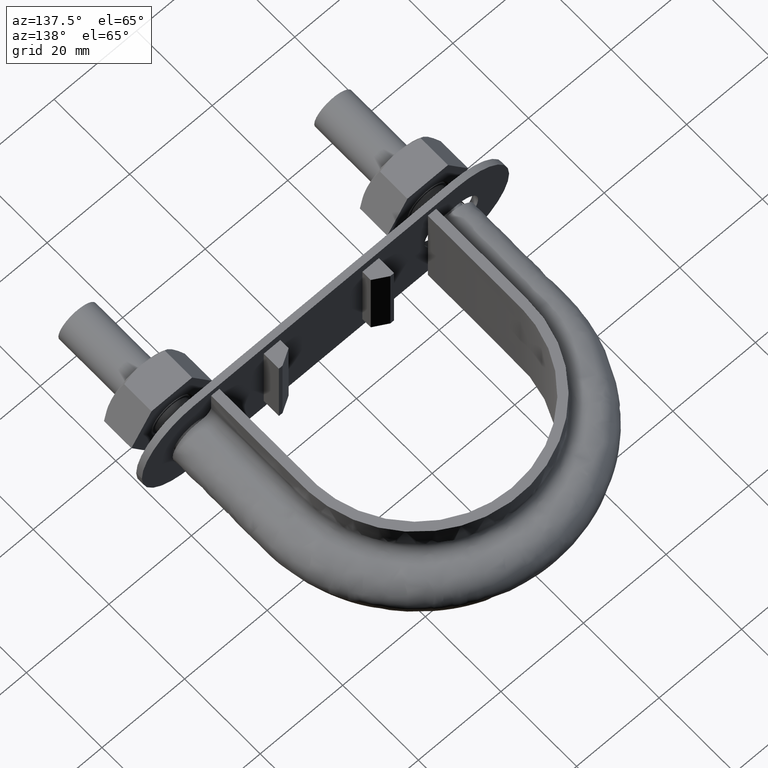
[diagram: clean part render]
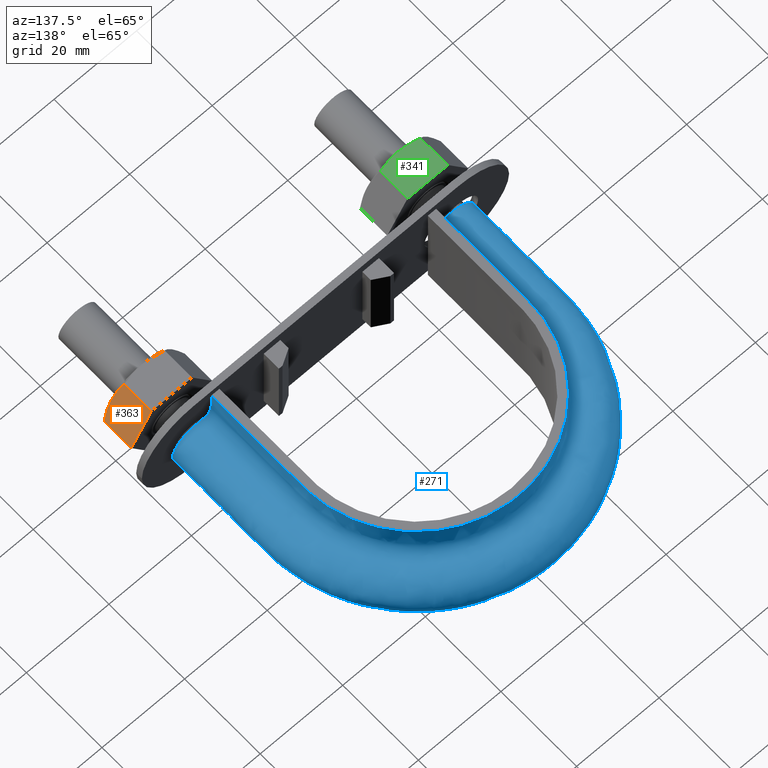
[diagram: same view with three faces highlighted in distinct colors, each labeled with its STEP entity id]
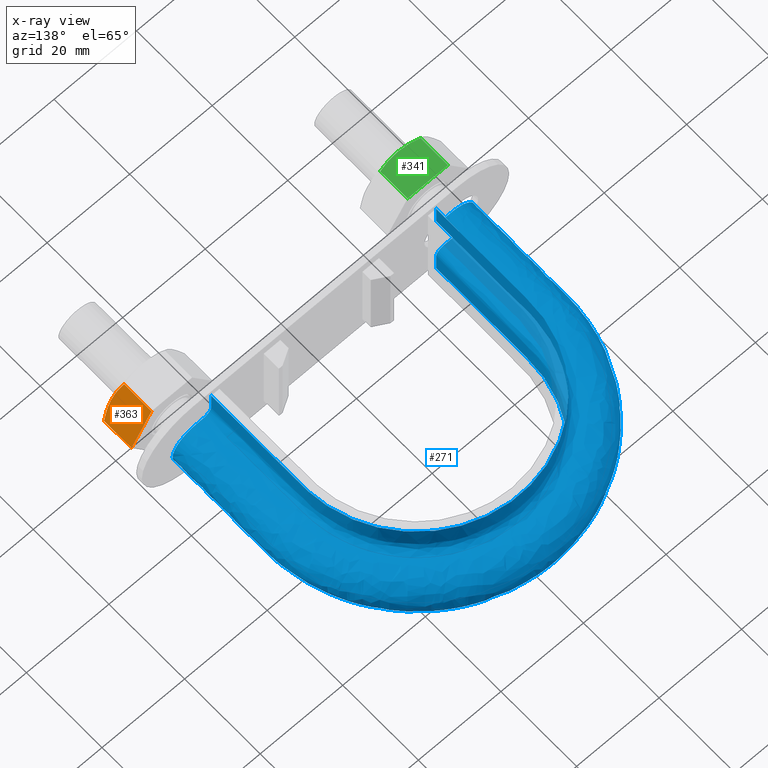
[diagram: x-ray of the same camera — body ghosted, the three highlighted faces saturated]
A machine part, auxiliary view with three faces highlighted in distinct colors.
The next image is the same camera in x-ray (body ghosted, the three faces saturated) — at least one of them is partly hidden behind the body in this view.
Their STEP definitions:

[orange] entity #363 — the highlighted planar face has unit normal (-0.866, 0, -0.5).
#363 = ADVANCED_FACE( '', ( #597 ), #598, .F. );
#597 = FACE_OUTER_BOUND( '', #1525, .T. );
#598 = PLANE( '', #1526 );
#1525 = EDGE_LOOP( '', ( #2270, #2271, #2272, #2273, #2274 ) );
#1526 = AXIS2_PLACEMENT_3D( '', #2275, #2276, #2277 );
#2270 = ORIENTED_EDGE( '', *, *, #2601, .F. );
#2271 = ORIENTED_EDGE( '', *, *, #2568, .F. );
#2272 = ORIENTED_EDGE( '', *, *, #2602, .F. );
#2273 = ORIENTED_EDGE( '', *, *, #2585, .F. );
#2274 = ORIENTED_EDGE( '', *, *, #2596, .F. );
#2275 = CARTESIAN_POINT( '', ( 35.9074773846065, 25.0000000000000, 8.49999994428782 ) );
#2276 = DIRECTION( '', ( -0.866025409460596, 1.97899496630448E-016, -0.499999990168607 ) );
#2277 = DIRECTION( '', ( -1.22460635382238E-016, -1.00000000000000, -1.83690953073357E-016 ) );
#2568 = EDGE_CURVE( '', #2927, #2930, #2931, .T. );
#2585 = EDGE_CURVE( '', #2959, #2961, #2962, .T. );
#2596 = EDGE_CURVE( '', #2980, #2959, #2982, .T. );
#2601 = EDGE_CURVE( '', #2930, #2980, #2989, .T. );
#2602 = EDGE_CURVE( '', #2961, #2927, #2990, .F. );
#2927 = VERTEX_POINT( '', #3737 );
#2930 = VERTEX_POINT( '', #3740 );
#2931 = B_SPLINE_CURVE_WITH_KNOTS( '', 3, ( #3741, #3742, #3743, #3744, #3745, #3746 ), .UNSPECIFIED., .F., .F., ( 4, 2, 4 ), ( 0.0107224888714698, 0.0132032657403429, 0.0156840426092160 ), .UNSPECIFIED. );
#2959 = VERTEX_POINT( '', #3796 );
#2961 = VERTEX_POINT( '', #3798 );
#2962 = LINE( '', #3799, #3800 );
#2980 = VERTEX_POINT( '', #3822 );
#2982 = LINE( '', #3824, #3825 );
#2989 = B_SPLINE_CURVE_WITH_KNOTS( '', 3, ( #3845, #3846, #3847, #3848, #3849, #3850 ), .UNSPECIFIED., .F., .F., ( 4, 2, 4 ), ( 0.0156840426092160, 0.0181633795370684, 0.0206427164649208 ), .UNSPECIFIED. );
#2990 = LINE( '', #3851, #3852 );
#3737 = CARTESIAN_POINT( '', ( 40.7999656121130, 17.7505553499473, 0.0259615366495244 ) );
#3740 = CARTESIAN_POINT( '', ( 38.3612159804146, 17.0000000000008, 4.24999991643290 ) );
#3741 = CARTESIAN_POINT( '', ( 40.7999656121130, 17.7505553499474, 0.0259615366495432 ) );
#3742 = CARTESIAN_POINT( '', ( 40.4026529067445, 17.5222200930423, 0.714127346882226 ) );
#3743 = CARTESIAN_POINT( '', ( 40.0018172593175, 17.3336547117183, 1.40839507191212 ) );
#3744 = CARTESIAN_POINT( '', ( 39.1899065488432, 17.0721149177828, 2.81466571053129 ) );
#3745 = CARTESIAN_POINT( '', ( 38.7787553490103, 17.0000000000011, 3.52680049690476 ) );
#3746 = CARTESIAN_POINT( '', ( 38.3612159804146, 17.0000000000011, 4.24999991643294 ) );
#3796 = CARTESIAN_POINT( '', ( 35.9224663487162, 25.0000000000000, 8.47403829621628 ) );
#3798 = CARTESIAN_POINT( '', ( 40.7999656121130, 25.0000000000000, 0.0259615366495257 ) );
#3799 = CARTESIAN_POINT( '', ( 33.4612160767631, 25.0000000000000, 12.7370489291454 ) );
#3800 = VECTOR( '', #4212, 999.999999999945 );
#3822 = CARTESIAN_POINT( '', ( 35.9224663487162, 17.7505553499473, 8.47403829621628 ) );
#3824 = CARTESIAN_POINT( '', ( 35.9224663487162, 25.0000000000000, 8.47403829621628 ) );
#3825 = VECTOR( '', #4235, 1000.00000000001 );
#3845 = CARTESIAN_POINT( '', ( 38.3612159804146, 17.0000000000011, 4.24999991643294 ) );
#3846 = CARTESIAN_POINT( '', ( 37.9439189681840, 17.0000000000011, 4.97277956241221 ) );
#3847 = CARTESIAN_POINT( '', ( 37.5316668601253, 17.0723104611273, 5.68682117781737 ) );
#3848 = CARTESIAN_POINT( '', ( 36.7198123012097, 17.3339943747743, 7.09299455908128 ) );
#3849 = CARTESIAN_POINT( '', ( 36.3192871144514, 17.5225028103103, 7.78672455044522 ) );
#3850 = CARTESIAN_POINT( '', ( 35.9224663487162, 17.7505553499474, 8.47403829621627 ) );
#3851 = CARTESIAN_POINT( '', ( 40.7999656121130, 25.0000000000000, 0.0259615366495257 ) );
#3852 = VECTOR( '', #4240, 1000.00000000001 );
#4212 = DIRECTION( '', ( 0.499999990168607, 9.78507163624005E-017, -0.866025409460596 ) );
#4235 = DIRECTION( '', ( 1.22460635382238E-016, 1.00000000000000, 1.83690953073357E-016 ) );
#4240 = DIRECTION( '', ( 1.22460635382238E-016, 1.00000000000000, 1.83690953073357E-016 ) );

[blue] entity #271 — the highlighted face is a freeform B-spline surface patch.
#271 = ADVANCED_FACE( '', ( #388 ), #389, .F. );
#388 = FACE_OUTER_BOUND( '', #641, .T. );
#389 = B_SPLINE_SURFACE_WITH_KNOTS( '', 3, 3, ( ( #642, #643, #644, #645, #646, #647, #648, #649, #650, #651, #652, #653, #654, #655, #656, #657, #658 ), ( #659, #660, #661, #662, #663, #664, #665, #666, #667, #668, #669, #670, #671, #672, #673, #674, #675 ), ( #676, #677, #678, #679, #680, #681, #682, #683, #684, #685, #686, #687, #688, #689, #690, #691, #692 ), ( #693, #694, #695, #696, #697, #698, #699, #700, #701, #702, #703, #704, #705, #706, #707, #708, #709 ), ( #710, #711, #712, #713, #714, #715, #716, #717, #718, #719, #720, #721, #722, #723, #724, #725, #726 ), ( #727, #728, #729, #730, #731, #732, #733, #734, #735, #736, #737, #738, #739, #740, #741, #742, #743 ), ( #744, #745, #746, #747, #748, #749, #750, #751, #752, #753, #754, #755, #756, #757, #758, #759, #760 ), ( #761, #762, #763, #764, #765, #766, #767, #768, #769, #770, #771, #772, #773, #774, #775, #776, #777 ), ( #778, #779, #780, #781, #782, #783, #784, #785, #786, #787, #788, #789, #790, #791, #792, #793, #794 ), ( #795, #796, #797, #798, #799, #800, #801, #802, #803, #804, #805, #806, #807, #808, #809, #810, #811 ), ( #812, #813, #814, #815, #816, #817, #818, #819, #820, #821, #822, #823, #824, #825, #826, #827, #828 ), ( #829, #830, #831, #832, #833, #834, #835, #836, #837, #838, #839, #840, #841, #842, #843, #844, #845 ), ( #846, #847, #848, #849, #850, #851, #852, #853, #854, #855, #856, #857, #858, #859, #860, #861, #862 ), ( #863, #864, #865, #866, #867, #868, #869, #870, #871, #872, #873, #874, #875, #876, #877, #878, #879 ), ( #880, #881, #882, #883, #884, #885, #886, #887, #888, #889, #890, #891, #892, #893, #894, #895, #896 ), ( #897, #898, #899, #900, #901, #902, #903, #904, #905, #906, #907, #908, #909, #910, #911, #912, #913 ), ( #914, #915, #916, #917, #918, #919, #920, #921, #922, #923, #924, #925, #926, #927, #928, #929, #930 ), ( #931, #932, #933, #934, #935, #936, #937, #938, #939, #940, #941, #942, #943, #944, #945, #946, #947 ), ( #948, #949, #950, #951, #952, #953, #954, #955, #956, #957, #958, #959, #960, #961, #962, #963, #964 ), ( #965, #966, #967, #968, #969, #970, #971, #972, #973, #974, #975, #976, #977, #978, #979, #980, #981 ), ( #982, #983, #984, #985, #986, #987, #988, #989, #990, #991, #992, #993, #994, #995, #996, #997, #998 ), ( #999, #1000, #1001, #1002, #1003, #1004, #1005, #1006, #1007, #1008, #1009, #1010, #1011, #1012, #1013, #1014, #1015 ), ( #1016, #1017, #1018, #1019, #1020, #1021, #1022, #1023, #1024, #1025, #1026, #1027, #1028, #1029, #1030, #1031, #1032 ), ( #1033, #1034, #1035, #1036, #1037, #1038, #1039, #1040, #1041, #1042, #1043, #1044, #1045, #1046, #1047, #1048, #1049 ), ( #1050, #1051, #1052, #1053, #1054, #1055, #1056, #1057, #1058, #1059, #1060, #1061, #1062, #1063, #1064, #1065, #1066 ), ( #1067, #1068, #1069, #1070, #1071, #1072, #1073, #1074, #1075, #1076, #1077, #1078, #1079, #1080, #1081, #1082, #1083 ), ( #1084, #1085, #1086, #1087, #1088, #1089, #1090, #1091, #1092, #1093, #1094, #1095, #1096, #1097, #1098, #1099, #1100 ), ( #1101, #1102, #1103, #1104, #1105, #1106, #1107, #1108, #1109, #1110, #1111, #1112, #1113, #1114, #1115, #1116, #1117 ), ( #1118, #1119, #1120, #1121, #1122, #1123, #1124, #1125, #1126, #1127, #1128, #1129, #1130, #1131, #1132, #1133, #1134 ), ( #1135, #1136, #1137, #1138, #1139, #1140, #1141, #1142, #1143, #1144, #1145, #1146, #1147, #1148, #1149, #1150, #1151 ), ( #1152, #1153, #1154, #1155, #1156, #1157, #1158, #1159, #1160, #1161, #1162, #1163, #1164, #1165, #1166, #1167, #1168 ) ), .UNSPECIFIED., .F., .F., .F., ( 4, 3, 1, 1, 1, 3, 3, 1, 1, 1, 3, 3, 1, 1, 1, 3, 4 ), ( 4, 3, 1, 1, 1, 1, 1, 1, 1, 3, 4 ), ( 0.000000000000000, 0.0526315789473684, 0.105263157894737, 0.157894736842105, 0.210526315789474, 0.263157894736842, 0.315789473684211, 0.368421052631579, 0.421052631578947, 0.473684210526316, 0.526315789473684, 0.578947368421053, 0.631578947368421, 0.684210526315789, 0.736842105263158, 0.789473684210526, 0.842105263157895 ), ( 0.000000000000000, 1.00000000000000, 1.50000000000000, 2.00000000000000, 3.00000000000000, 4.00000000000000, 5.00000000000000, 6.00000000000000, 6.50000000000000, 7.00000000000000, 8.00000000000000 ), .UNSPECIFIED. );
#641 = EDGE_LOOP( '', ( #1603, #1604, #1605, #1606 ) );
#642 = CARTESIAN_POINT( '', ( -27.2500000000000, 28.6500000000000, 12.5000000000000 ) );
#643 = CARTESIAN_POINT( '', ( -27.2500000000000, 37.6833333333333, 12.5000000000000 ) );
#644 = CARTESIAN_POINT( '', ( -27.2500000000000, 46.7166666666667, 12.5000000000000 ) );
#645 = CARTESIAN_POINT( '', ( -27.2500000000000, 55.7500000000000, 12.5000000000000 ) );
#646 = CARTESIAN_POINT( '', ( -27.2500000000000, 58.1191567773597, 12.5000000000000 ) );
#647 = CARTESIAN_POINT( '', ( -26.6117168448872, 62.8841292069730, 12.5000000000000 ) );
#648 = CARTESIAN_POINT( '', ( -22.9630708598582, 71.7501478795154, 12.5000000000000 ) );
#649 = CARTESIAN_POINT( '', ( -14.2616618337290, 80.4530230494961, 12.5000000000000 ) );
#650 = CARTESIAN_POINT( '', ( 1.76927597174585E-014, 84.2734884752519, 12.5000000000000 ) );
#651 = CARTESIAN_POINT( '', ( 14.2616618337290, 80.4530230494961, 12.5000000000000 ) );
#652 = CARTESIAN_POINT( '', ( 22.9630708598583, 71.7501478795154, 12.5000000000000 ) );
#653 = CARTESIAN_POINT( '', ( 26.6117168448872, 62.8841292069730, 12.5000000000000 ) );
#654 = CARTESIAN_POINT( '', ( 27.2500000000000, 58.1191567773597, 12.5000000000000 ) );
#655 = CARTESIAN_POINT( '', ( 27.2500000000000, 55.7500000000000, 12.5000000000000 ) );
#656 = CARTESIAN_POINT( '', ( 27.2500000000000, 46.7166666666666, 12.5000000000000 ) );
#657 = CARTESIAN_POINT( '', ( 27.2500000000000, 37.6833333333333, 12.5000000000000 ) );
#658 = CARTESIAN_POINT( '', ( 27.2500000000000, 28.6500000000000, 12.5000000000000 ) );
#659 = CARTESIAN_POINT( '', ( -27.2500000000000, 28.6500000000000, 10.8666666666667 ) );
#660 = CARTESIAN_POINT( '', ( -27.2500000000000, 37.6833333333333, 10.8666666666667 ) );
#661 = CARTESIAN_POINT( '', ( -27.2500000000000, 46.7166666666667, 10.8666666666667 ) );
#662 = CARTESIAN_POINT( '', ( -27.2500000000000, 55.7500000000000, 10.8666666666667 ) );
#663 = CARTESIAN_POINT( '', ( -27.2500000000000, 58.1191567773597, 10.8666666666667 ) );
#664 = CARTESIAN_POINT( '', ( -26.6117168448872, 62.8841292069730, 10.8666666666667 ) );
#665 = CARTESIAN_POINT( '', ( -22.9630708598582, 71.7501478795154, 10.8666666666667 ) );
#666 = CARTESIAN_POINT( '', ( -14.2616618337290, 80.4530230494961, 10.8666666666667 ) );
#667 = CARTESIAN_POINT( '', ( 1.76927597174585E-014, 84.2734884752519, 10.8666666666667 ) );
#668 = CARTESIAN_POINT( '', ( 14.2616618337290, 80.4530230494961, 10.8666666666667 ) );
#669 = CARTESIAN_POINT( '', ( 22.9630708598583, 71.7501478795154, 10.8666666666667 ) );
#670 = CARTESIAN_POINT( '', ( 26.6117168448872, 62.8841292069730, 10.8666666666667 ) );
#671 = CARTESIAN_POINT( '', ( 27.2500000000000, 58.1191567773597, 10.8666666666667 ) );
#672 = CARTESIAN_POINT( '', ( 27.2500000000000, 55.7500000000000, 10.8666666666667 ) );
#673 = CARTESIAN_POINT( '', ( 27.2500000000000, 46.7166666666666, 10.8666666666667 ) );
#674 = CARTESIAN_POINT( '', ( 27.2500000000000, 37.6833333333333, 10.8666666666667 ) );
#675 = CARTESIAN_POINT( '', ( 27.2500000000000, 28.6500000000000, 10.8666666666667 ) );
#676 = CARTESIAN_POINT( '', ( -27.2500000000000, 28.6500000000000, 9.23333333333333 ) );
#677 = CARTESIAN_POINT( '', ( -27.2500000000000, 37.6833333333333, 9.23333333333333 ) );
#678 = CARTESIAN_POINT( '', ( -27.2500000000000, 46.7166666666667, 9.23333333333333 ) );
#679 = CARTESIAN_POINT( '', ( -27.2500000000000, 55.7500000000000, 9.23333333333333 ) );
#680 = CARTESIAN_POINT( '', ( -27.2500000000000, 58.1191567773597, 9.23333333333333 ) );
#681 = CARTESIAN_POINT( '', ( -26.6117168448872, 62.8841292069730, 9.23333333333332 ) );
#682 = CARTESIAN_POINT( '', ( -22.9630708598582, 71.7501478795154, 9.23333333333335 ) );
#683 = CARTESIAN_POINT( '', ( -14.2616618337290, 80.4530230494961, 9.23333333333332 ) );
#684 = CARTESIAN_POINT( '', ( 1.81264405864527E-014, 84.2734884752519, 9.23333333333334 ) );
#685 = CARTESIAN_POINT( '', ( 14.2616618337290, 80.4530230494961, 9.23333333333332 ) );
#686 = CARTESIAN_POINT( '', ( 22.9630708598583, 71.7501478795154, 9.23333333333334 ) );
#687 = CARTESIAN_POINT( '', ( 26.6117168448872, 62.8841292069730, 9.23333333333333 ) );
#688 = CARTESIAN_POINT( '', ( 27.2500000000000, 58.1191567773597, 9.23333333333333 ) );
#689 = CARTESIAN_POINT( '', ( 27.2500000000000, 55.7500000000000, 9.23333333333333 ) );
#690 = CARTESIAN_POINT( '', ( 27.2500000000000, 46.7166666666666, 9.23333333333333 ) );
#691 = CARTESIAN_POINT( '', ( 27.2500000000000, 37.6833333333333, 9.23333333333333 ) );
#692 = CARTESIAN_POINT( '', ( 27.2500000000000, 28.6500000000000, 9.23333333333333 ) );
#693 = CARTESIAN_POINT( '', ( -27.2500000000000, 28.6500000000000, 7.59999999999999 ) );
#694 = CARTESIAN_POINT( '', ( -27.2500000000000, 37.6833333333333, 7.59999999999999 ) );
#695 = CARTESIAN_POINT( '', ( -27.2500000000000, 46.7166666666667, 7.59999999999999 ) );
#696 = CARTESIAN_POINT( '', ( -27.2500000000000, 55.7500000000000, 7.59999999999999 ) );
#697 = CARTESIAN_POINT( '', ( -27.2500000000000, 58.1191567773597, 7.60000000000000 ) );
#698 = CARTESIAN_POINT( '', ( -26.6117168448872, 62.8841292069730, 7.59999999999998 ) );
#699 = CARTESIAN_POINT( '', ( -22.9630708598582, 71.7501478795154, 7.60000000000001 ) );
#700 = CARTESIAN_POINT( '', ( -14.2616618337290, 80.4530230494961, 7.59999999999999 ) );
#701 = CARTESIAN_POINT( '', ( 1.98611640624295E-014, 84.2734884752519, 7.60000000000000 ) );
#702 = CARTESIAN_POINT( '', ( 14.2616618337290, 80.4530230494961, 7.59999999999999 ) );
#703 = CARTESIAN_POINT( '', ( 22.9630708598583, 71.7501478795154, 7.60000000000000 ) );
#704 = CARTESIAN_POINT( '', ( 26.6117168448872, 62.8841292069730, 7.59999999999999 ) );
#705 = CARTESIAN_POINT( '', ( 27.2500000000000, 58.1191567773597, 7.60000000000000 ) );
#706 = CARTESIAN_POINT( '', ( 27.2500000000000, 55.7500000000000, 7.60000000000000 ) );
#707 = CARTESIAN_POINT( '', ( 27.2500000000000, 46.7166666666666, 7.59999999999999 ) );
#708 = CARTESIAN_POINT( '', ( 27.2500000000000, 37.6833333333333, 7.59999999999999 ) );
#709 = CARTESIAN_POINT( '', ( 27.2500000000000, 28.6500000000000, 7.59999999999999 ) );
#710 = CARTESIAN_POINT( '', ( -27.2500000000000, 28.6500000000000, 7.33823584172332 ) );
#711 = CARTESIAN_POINT( '', ( -27.2500000000000, 37.6833333333333, 7.33823584172332 ) );
#712 = CARTESIAN_POINT( '', ( -27.2500000000000, 46.7166666666667, 7.33823584172332 ) );
#713 = CARTESIAN_POINT( '', ( -27.2500000000000, 55.7500000000000, 7.33823584172332 ) );
#714 = CARTESIAN_POINT( '', ( -27.2500000000000, 58.1191567773597, 7.33823584172333 ) );
#715 = CARTESIAN_POINT( '', ( -26.6117168448872, 62.8841292069730, 7.33823584172332 ) );
#716 = CARTESIAN_POINT( '', ( -22.9630708598582, 71.7501478795154, 7.33823584172334 ) );
#717 = CARTESIAN_POINT( '', ( -14.2616618337290, 80.4530230494961, 7.33823584172332 ) );
#718 = CARTESIAN_POINT( '', ( 1.68253979794701E-014, 84.2734884752519, 7.33823584172333 ) );
#719 = CARTESIAN_POINT( '', ( 14.2616618337290, 80.4530230494961, 7.33823584172332 ) );
#720 = CARTESIAN_POINT( '', ( 22.9630708598583, 71.7501478795154, 7.33823584172333 ) );
#721 = CARTESIAN_POINT( '', ( 26.6117168448872, 62.8841292069730, 7.33823584172332 ) );
#722 = CARTESIAN_POINT( '', ( 27.2500000000000, 58.1191567773597, 7.33823584172333 ) );
#723 = CARTESIAN_POINT( '', ( 27.2500000000000, 55.7500000000000, 7.33823584172333 ) );
#724 = CARTESIAN_POINT( '', ( 27.2500000000000, 46.7166666666666, 7.33823584172332 ) );
#725 = CARTESIAN_POINT( '', ( 27.2500000000000, 37.6833333333333, 7.33823584172332 ) );
#726 = CARTESIAN_POINT( '', ( 27.2500000000000, 28.6500000000000, 7.33823584172332 ) );
#727 = CARTESIAN_POINT( '', ( -27.3541362568359, 28.6500000000000, 6.81470752517000 ) );
#728 = CARTESIAN_POINT( '', ( -27.3541362568359, 37.6833333333333, 6.81470752517000 ) );
#729 = CARTESIAN_POINT( '', ( -27.3541362568359, 46.7166666666667, 6.81470752517000 ) );
#730 = CARTESIAN_POINT( '', ( -27.3541362568359, 55.7500000000000, 6.81470752517000 ) );
#731 = CARTESIAN_POINT( '', ( -27.3541362568359, 58.1284578526671, 6.81470752517000 ) );
#732 = CARTESIAN_POINT( '', ( -26.7134572332448, 62.9112921247769, 6.81470752516999 ) );
#733 = CARTESIAN_POINT( '', ( -23.0507996038451, 71.8113507123199, 6.81470752517001 ) );
#734 = CARTESIAN_POINT( '', ( -14.3161708541825, 80.5474048915053, 6.81470752516999 ) );
#735 = CARTESIAN_POINT( '', ( 1.90071521825383E-014, 84.3825019395012, 6.81470752517001 ) );
#736 = CARTESIAN_POINT( '', ( 14.3161708541825, 80.5474048915053, 6.81470752516999 ) );
#737 = CARTESIAN_POINT( '', ( 23.0507996038452, 71.8113507123199, 6.81470752517000 ) );
#738 = CARTESIAN_POINT( '', ( 26.7134572332449, 62.9112921247769, 6.81470752516999 ) );
#739 = CARTESIAN_POINT( '', ( 27.3541362568359, 58.1284578526671, 6.81470752517000 ) );
#740 = CARTESIAN_POINT( '', ( 27.3541362568359, 55.7500000000000, 6.81470752517000 ) );
#741 = CARTESIAN_POINT( '', ( 27.3541362568359, 46.7166666666666, 6.81470752517000 ) );
#742 = CARTESIAN_POINT( '', ( 27.3541362568359, 37.6833333333333, 6.81470752517000 ) );
#743 = CARTESIAN_POINT( '', ( 27.3541362568359, 28.6500000000000, 6.81470752517000 ) );
#744 = CARTESIAN_POINT( '', ( -27.7989687109389, 28.6500000000000, 6.14896871093887 ) );
#745 = CARTESIAN_POINT( '', ( -27.7989687109389, 37.6833333333333, 6.14896871093887 ) );
#746 = CARTESIAN_POINT( '', ( -27.7989687109389, 46.7166666666667, 6.14896871093887 ) );
#747 = CARTESIAN_POINT( '', ( -27.7989687109389, 55.7500000000000, 6.14896871093887 ) );
#748 = CARTESIAN_POINT( '', ( -27.7989687109389, 58.1681886849484, 6.14896871093887 ) );
#749 = CARTESIAN_POINT( '', ( -27.1480554030815, 63.0273222928896, 6.14896871093886 ) );
#750 = CARTESIAN_POINT( '', ( -23.4255450927726, 72.0727870952062, 6.14896871093888 ) );
#751 = CARTESIAN_POINT( '', ( -14.5490136898656, 80.9505700107379, 6.14896871093886 ) );
#752 = CARTESIAN_POINT( '', ( 1.86304970826636E-014, 84.8481680610393, 6.14896871093887 ) );
#753 = CARTESIAN_POINT( '', ( 14.5490136898657, 80.9505700107379, 6.14896871093886 ) );
#754 = CARTESIAN_POINT( '', ( 23.4255450927727, 72.0727870952062, 6.14896871093887 ) );
#755 = CARTESIAN_POINT( '', ( 27.1480554030816, 63.0273222928896, 6.14896871093886 ) );
#756 = CARTESIAN_POINT( '', ( 27.7989687109389, 58.1681886849484, 6.14896871093887 ) );
#757 = CARTESIAN_POINT( '', ( 27.7989687109389, 55.7500000000000, 6.14896871093887 ) );
#758 = CARTESIAN_POINT( '', ( 27.7989687109389, 46.7166666666666, 6.14896871093887 ) );
#759 = CARTESIAN_POINT( '', ( 27.7989687109389, 37.6833333333333, 6.14896871093887 ) );
#760 = CARTESIAN_POINT( '', ( 27.7989687109389, 28.6500000000000, 6.14896871093887 ) );
#761 = CARTESIAN_POINT( '', ( -28.4647075251700, 28.6500000000000, 5.70413625683590 ) );
#762 = CARTESIAN_POINT( '', ( -28.4647075251700, 37.6833333333333, 5.70413625683590 ) );
#763 = CARTESIAN_POINT( '', ( -28.4647075251700, 46.7166666666667, 5.70413625683590 ) );
#764 = CARTESIAN_POINT( '', ( -28.4647075251700, 55.7500000000000, 5.70413625683590 ) );
#765 = CARTESIAN_POINT( '', ( -28.4647075251700, 58.2276500774962, 5.70413625683590 ) );
#766 = CARTESIAN_POINT( '', ( -27.7984775285030, 63.2009737111300, 5.70413625683589 ) );
#767 = CARTESIAN_POINT( '', ( -23.9863913510345, 72.4640542924041, 5.70413625683591 ) );
#768 = CARTESIAN_POINT( '', ( -14.8974876195444, 81.5539492514872, 5.70413625683589 ) );
#769 = CARTESIAN_POINT( '', ( 1.82821613083541E-014, 85.5450866620114, 5.70413625683590 ) );
#770 = CARTESIAN_POINT( '', ( 14.8974876195444, 81.5539492514872, 5.70413625683589 ) );
#771 = CARTESIAN_POINT( '', ( 23.9863913510345, 72.4640542924041, 5.70413625683590 ) );
#772 = CARTESIAN_POINT( '', ( 27.7984775285030, 63.2009737111301, 5.70413625683589 ) );
#773 = CARTESIAN_POINT( '', ( 28.4647075251700, 58.2276500774962, 5.70413625683590 ) );
#774 = CARTESIAN_POINT( '', ( 28.4647075251700, 55.7500000000000, 5.70413625683590 ) );
#775 = CARTESIAN_POINT( '', ( 28.4647075251700, 46.7166666666666, 5.70413625683590 ) );
#776 = CARTESIAN_POINT( '', ( 28.4647075251700, 37.6833333333333, 5.70413625683590 ) );
#777 = CARTESIAN_POINT( '', ( 28.4647075251700, 28.6500000000000, 5.70413625683590 ) );
#778 = CARTESIAN_POINT( '', ( -28.9882358417233, 28.6500000000000, 5.59999999999999 ) );
#779 = CARTESIAN_POINT( '', ( -28.9882358417233, 37.6833333333333, 5.59999999999999 ) );
#780 = CARTESIAN_POINT( '', ( -28.9882358417233, 46.7166666666667, 5.59999999999999 ) );
#781 = CARTESIAN_POINT( '', ( -28.9882358417233, 55.7500000000000, 5.59999999999999 ) );
#782 = CARTESIAN_POINT( '', ( -28.9882358417233, 58.2744097407079, 5.59999999999999 ) );
#783 = CARTESIAN_POINT( '', ( -28.3099610008377, 63.3375309205268, 5.59999999999998 ) );
#784 = CARTESIAN_POINT( '', ( -24.4274335302743, 72.7717417107924, 5.60000000000000 ) );
#785 = CARTESIAN_POINT( '', ( -15.1715229707476, 82.0284388131594, 5.59999999999998 ) );
#786 = CARTESIAN_POINT( '', ( 1.74819138391920E-014, 86.0931343560053, 5.60000000000000 ) );
#787 = CARTESIAN_POINT( '', ( 15.1715229707476, 82.0284388131594, 5.59999999999998 ) );
#788 = CARTESIAN_POINT( '', ( 24.4274335302743, 72.7717417107923, 5.59999999999999 ) );
#789 = CARTESIAN_POINT( '', ( 28.3099610008377, 63.3375309205268, 5.59999999999999 ) );
#790 = CARTESIAN_POINT( '', ( 28.9882358417234, 58.2744097407079, 5.59999999999999 ) );
#791 = CARTESIAN_POINT( '', ( 28.9882358417234, 55.7500000000000, 5.59999999999999 ) );
#792 = CARTESIAN_POINT( '', ( 28.9882358417234, 46.7166666666666, 5.59999999999999 ) );
#793 = CARTESIAN_POINT( '', ( 28.9882358417233, 37.6833333333333, 5.59999999999999 ) );
#794 = CARTESIAN_POINT( '', ( 28.9882358417233, 28.6500000000000, 5.59999999999999 ) );
#795 = CARTESIAN_POINT( '', ( -29.2500000000000, 28.6500000000000, 5.59999999999999 ) );
#796 = CARTESIAN_POINT( '', ( -29.2500000000000, 37.6833333333333, 5.59999999999999 ) );
#797 = CARTESIAN_POINT( '', ( -29.2500000000000, 46.7166666666667, 5.59999999999999 ) );
#798 = CARTESIAN_POINT( '', ( -29.2500000000000, 55.7500000000000, 5.59999999999999 ) );
#799 = CARTESIAN_POINT( '', ( -29.2500000000000, 58.2977895723138, 5.59999999999999 ) );
#800 = CARTESIAN_POINT( '', ( -28.5657027370050, 63.4058095252252, 5.59999999999998 ) );
#801 = CARTESIAN_POINT( '', ( -24.6479546198942, 72.9255854199864, 5.60000000000000 ) );
#802 = CARTESIAN_POINT( '', ( -15.3085406463492, 82.2656835939955, 5.59999999999998 ) );
#803 = CARTESIAN_POINT( '', ( 1.75154709736051E-014, 86.3671582030022, 5.60000000000000 ) );
#804 = CARTESIAN_POINT( '', ( 15.3085406463492, 82.2656835939955, 5.59999999999998 ) );
#805 = CARTESIAN_POINT( '', ( 24.6479546198943, 72.9255854199864, 5.59999999999999 ) );
#806 = CARTESIAN_POINT( '', ( 28.5657027370050, 63.4058095252252, 5.59999999999999 ) );
#807 = CARTESIAN_POINT( '', ( 29.2500000000000, 58.2977895723138, 5.59999999999999 ) );
#808 = CARTESIAN_POINT( '', ( 29.2500000000000, 55.7500000000000, 5.59999999999999 ) );
#809 = CARTESIAN_POINT( '', ( 29.2500000000000, 46.7166666666666, 5.59999999999999 ) );
#810 = CARTESIAN_POINT( '', ( 29.2500000000000, 37.6833333333333, 5.59999999999999 ) );
#811 = CARTESIAN_POINT( '', ( 29.2500000000000, 28.6500000000000, 5.59999999999999 ) );
#812 = CARTESIAN_POINT( '', ( -29.8333333333333, 28.6500000000000, 5.60000000000001 ) );
#813 = CARTESIAN_POINT( '', ( -29.8333333333333, 37.6833333333333, 5.60000000000001 ) );
#814 = CARTESIAN_POINT( '', ( -29.8333333333333, 46.7166666666667, 5.60000000000001 ) );
#815 = CARTESIAN_POINT( '', ( -29.8333333333333, 55.7500000000000, 5.60000000000001 ) );
#816 = CARTESIAN_POINT( '', ( -29.8333333333333, 58.3498908041754, 5.60000000000001 ) );
#817 = CARTESIAN_POINT( '', ( -29.1356152888727, 63.5579662847154, 5.60000000000000 ) );
#818 = CARTESIAN_POINT( '', ( -25.1393790499047, 73.2684213692905, 5.60000000000002 ) );
#819 = CARTESIAN_POINT( '', ( -15.6138803000301, 82.7943762528078, 5.60000000000000 ) );
#820 = CARTESIAN_POINT( '', ( 1.75902520101045E-014, 86.9778118735961, 5.60000000000001 ) );
#821 = CARTESIAN_POINT( '', ( 15.6138803000301, 82.7943762528078, 5.60000000000000 ) );
#822 = CARTESIAN_POINT( '', ( 25.1393790499047, 73.2684213692905, 5.60000000000001 ) );
#823 = CARTESIAN_POINT( '', ( 29.1356152888727, 63.5579662847155, 5.60000000000000 ) );
#824 = CARTESIAN_POINT( '', ( 29.8333333333334, 58.3498908041754, 5.60000000000001 ) );
#825 = CARTESIAN_POINT( '', ( 29.8333333333334, 55.7500000000000, 5.60000000000001 ) );
#826 = CARTESIAN_POINT( '', ( 29.8333333333334, 46.7166666666666, 5.60000000000001 ) );
#827 = CARTESIAN_POINT( '', ( 29.8333333333333, 37.6833333333333, 5.60000000000001 ) );
#828 = CARTESIAN_POINT( '', ( 29.8333333333333, 28.6500000000000, 5.60000000000001 ) );
#829 = CARTESIAN_POINT( '', ( -30.4166666666667, 28.6500000000000, 5.60000000000001 ) );
#830 = CARTESIAN_POINT( '', ( -30.4166666666667, 37.6833333333333, 5.60000000000001 ) );
#831 = CARTESIAN_POINT( '', ( -30.4166666666667, 46.7166666666667, 5.60000000000001 ) );
#832 = CARTESIAN_POINT( '', ( -30.4166666666667, 55.7500000000000, 5.60000000000001 ) );
#833 = CARTESIAN_POINT( '', ( -30.4166666666667, 58.4019920360370, 5.60000000000001 ) );
#834 = CARTESIAN_POINT( '', ( -29.7055278407404, 63.7101230442057, 5.60000000000000 ) );
#835 = CARTESIAN_POINT( '', ( -25.6308034799152, 73.6112573185946, 5.60000000000002 ) );
#836 = CARTESIAN_POINT( '', ( -15.9192199537110, 83.3230689116201, 5.60000000000000 ) );
#837 = CARTESIAN_POINT( '', ( 1.76650330466040E-014, 87.5884655441899, 5.60000000000001 ) );
#838 = CARTESIAN_POINT( '', ( 15.9192199537110, 83.3230689116201, 5.60000000000000 ) );
#839 = CARTESIAN_POINT( '', ( 25.6308034799152, 73.6112573185946, 5.60000000000001 ) );
#840 = CARTESIAN_POINT( '', ( 29.7055278407404, 63.7101230442057, 5.60000000000000 ) );
#841 = CARTESIAN_POINT( '', ( 30.4166666666667, 58.4019920360370, 5.60000000000001 ) );
#842 = CARTESIAN_POINT( '', ( 30.4166666666667, 55.7500000000000, 5.60000000000001 ) );
#843 = CARTESIAN_POINT( '', ( 30.4166666666667, 46.7166666666666, 5.60000000000001 ) );
#844 = CARTESIAN_POINT( '', ( 30.4166666666667, 37.6833333333333, 5.60000000000001 ) );
#845 = CARTESIAN_POINT( '', ( 30.4166666666667, 28.6500000000000, 5.60000000000001 ) );
#846 = CARTESIAN_POINT( '', ( -31.0000000000000, 28.6500000000000, 5.60000000000001 ) );
#847 = CARTESIAN_POINT( '', ( -31.0000000000000, 37.6833333333333, 5.60000000000001 ) );
#848 = CARTESIAN_POINT( '', ( -31.0000000000000, 46.7166666666667, 5.60000000000001 ) );
#849 = CARTESIAN_POINT( '', ( -31.0000000000000, 55.7500000000000, 5.60000000000001 ) );
#850 = CARTESIAN_POINT( '', ( -31.0000000000000, 58.4540932678986, 5.60000000000001 ) );
#851 = CARTESIAN_POINT( '', ( -30.2754403926081, 63.8622798036959, 5.60000000000000 ) );
#852 = CARTESIAN_POINT( '', ( -26.1222279099257, 73.9540932678986, 5.60000000000002 ) );
#853 = CARTESIAN_POINT( '', ( -16.2245596073919, 83.8517615704325, 5.60000000000000 ) );
#854 = CARTESIAN_POINT( '', ( 1.68724523451150E-014, 88.1991192147837, 5.60000000000001 ) );
#855 = CARTESIAN_POINT( '', ( 16.2245596073919, 83.8517615704324, 5.60000000000000 ) );
#856 = CARTESIAN_POINT( '', ( 26.1222279099257, 73.9540932678986, 5.60000000000001 ) );
#857 = CARTESIAN_POINT( '', ( 30.2754403926081, 63.8622798036959, 5.60000000000000 ) );
#858 = CARTESIAN_POINT( '', ( 31.0000000000000, 58.4540932678986, 5.60000000000001 ) );
#859 = CARTESIAN_POINT( '', ( 31.0000000000000, 55.7500000000000, 5.60000000000001 ) );
#860 = CARTESIAN_POINT( '', ( 31.0000000000000, 46.7166666666666, 5.60000000000001 ) );
#861 = CARTESIAN_POINT( '', ( 31.0000000000000, 37.6833333333333, 5.60000000000001 ) );
#862 = CARTESIAN_POINT( '', ( 31.0000000000000, 28.6500000000000, 5.60000000000001 ) );
#863 = CARTESIAN_POINT( '', ( -32.4627416997969, 28.6500000000000, 5.60000000000001 ) );
#864 = CARTESIAN_POINT( '', ( -32.4627416997969, 37.6833333333333, 5.60000000000001 ) );
#865 = CARTESIAN_POINT( '', ( -32.4627416997969, 46.7166666666667, 5.60000000000001 ) );
#866 = CARTESIAN_POINT( '', ( -32.4627416997969, 55.7500000000000, 5.60000000000001 ) );
#867 = CARTESIAN_POINT( '', ( -32.4627416997969, 58.5847400869640, 5.60000000000001 ) );
#868 = CARTESIAN_POINT( '', ( -31.7045287152159, 64.2438215814313, 5.60000000000000 ) );
#869 = CARTESIAN_POINT( '', ( -27.3545027774834, 74.8137740208755, 5.60000000000002 ) );
#870 = CARTESIAN_POINT( '', ( -16.9902162543186, 85.1774886534404, 5.60000000000000 ) );
#871 = CARTESIAN_POINT( '', ( 1.79273318095749E-014, 89.7303682229752, 5.60000000000002 ) );
#872 = CARTESIAN_POINT( '', ( 16.9902162543186, 85.1774886534404, 5.60000000000000 ) );
#873 = CARTESIAN_POINT( '', ( 27.3545027774834, 74.8137740208755, 5.60000000000001 ) );
#874 = CARTESIAN_POINT( '', ( 31.7045287152160, 64.2438215814314, 5.60000000000001 ) );
#875 = CARTESIAN_POINT( '', ( 32.4627416997970, 58.5847400869639, 5.60000000000001 ) );
#876 = CARTESIAN_POINT( '', ( 32.4627416997970, 55.7500000000000, 5.60000000000001 ) );
#877 = CARTESIAN_POINT( '', ( 32.4627416997970, 46.7166666666666, 5.60000000000001 ) );
#878 = CARTESIAN_POINT( '', ( 32.4627416997970, 37.6833333333333, 5.60000000000001 ) );
#879 = CARTESIAN_POINT( '', ( 32.4627416997970, 28.6500000000000, 5.60000000000001 ) );
#880 = CARTESIAN_POINT( '', ( -35.3882250993908, 28.6500000000000, 4.38822509939087 ) );
#881 = CARTESIAN_POINT( '', ( -35.3882250993908, 37.6833333333333, 4.38822509939087 ) );
#882 = CARTESIAN_POINT( '', ( -35.3882250993908, 46.7166666666667, 4.38822509939087 ) );
#883 = CARTESIAN_POINT( '', ( -35.3882250993908, 55.7500000000000, 4.38822509939087 ) );
#884 = CARTESIAN_POINT( '', ( -35.3882250993908, 58.8460337250946, 4.38822509939087 ) );
#885 = CARTESIAN_POINT( '', ( -34.5627053604316, 65.0069051369022, 4.38822509939086 ) );
#886 = CARTESIAN_POINT( '', ( -29.8190525125987, 76.5331355268293, 4.38822509939087 ) );
#887 = CARTESIAN_POINT( '', ( -18.5215295481721, 87.8289428194563, 4.38822509939086 ) );
#888 = CARTESIAN_POINT( '', ( 1.57002820485528E-014, 92.7928662393581, 4.38822509939087 ) );
#889 = CARTESIAN_POINT( '', ( 18.5215295481721, 87.8289428194563, 4.38822509939086 ) );
#890 = CARTESIAN_POINT( '', ( 29.8190525125987, 76.5331355268293, 4.38822509939087 ) );
#891 = CARTESIAN_POINT( '', ( 34.5627053604317, 65.0069051369022, 4.38822509939086 ) );
#892 = CARTESIAN_POINT( '', ( 35.3882250993909, 58.8460337250945, 4.38822509939087 ) );
#893 = CARTESIAN_POINT( '', ( 35.3882250993909, 55.7500000000000, 4.38822509939087 ) );
#894 = CARTESIAN_POINT( '', ( 35.3882250993909, 46.7166666666666, 4.38822509939087 ) );
#895 = CARTESIAN_POINT( '', ( 35.3882250993909, 37.6833333333333, 4.38822509939087 ) );
#896 = CARTESIAN_POINT( '', ( 35.3882250993909, 28.6500000000000, 4.38822509939087 ) );
#897 = CARTESIAN_POINT( '', ( -37.2058874503046, 28.6500000000000, 9.94452457394278E-015 ) );
#898 = CARTESIAN_POINT( '', ( -37.2058874503046, 37.6833333333333, 9.94452457394278E-015 ) );
#899 = CARTESIAN_POINT( '', ( -37.2058874503046, 46.7166666666667, 9.94452457394278E-015 ) );
#900 = CARTESIAN_POINT( '', ( -37.2058874503046, 55.7500000000000, 9.94452457394278E-015 ) );
#901 = CARTESIAN_POINT( '', ( -37.2058874503046, 59.0083807781078, 9.94452457394278E-015 ) );
#902 = CARTESIAN_POINT( '', ( -36.3385486555912, 65.4810244737521, 9.94452457394277E-015 ) );
#903 = CARTESIAN_POINT( '', ( -31.3503274007403, 77.6014098084117, 9.94452457394280E-015 ) );
#904 = CARTESIAN_POINT( '', ( -19.4729656500066, 89.4763452328180, 9.94452457394277E-015 ) );
#905 = CARTESIAN_POINT( '', ( 1.50659374670340E-014, 94.6956585590478, 9.94452457394279E-015 ) );
#906 = CARTESIAN_POINT( '', ( 19.4729656500067, 89.4763452328180, 9.94452457394277E-015 ) );
#907 = CARTESIAN_POINT( '', ( 31.3503274007404, 77.6014098084117, 9.94452457394279E-015 ) );
#908 = CARTESIAN_POINT( '', ( 36.3385486555912, 65.4810244737521, 9.94452457394277E-015 ) );
#909 = CARTESIAN_POINT( '', ( 37.2058874503046, 59.0083807781078, 9.94452457394278E-015 ) );
#910 = CARTESIAN_POINT( '', ( 37.2058874503046, 55.7500000000000, 9.94452457394278E-015 ) );
#911 = CARTESIAN_POINT( '', ( 37.2058874503046, 46.7166666666666, 9.94452457394278E-015 ) );
#912 = CARTESIAN_POINT( '', ( 37.2058874503046, 37.6833333333333, 9.94452457394278E-015 ) );
#913 = CARTESIAN_POINT( '', ( 37.2058874503046, 28.6500000000000, 9.94452457394278E-015 ) );
#914 = CARTESIAN_POINT( '', ( -35.3882250993908, 28.6500000000000, -4.38822509939085 ) );
#915 = CARTESIAN_POINT( '', ( -35.3882250993908, 37.6833333333333, -4.38822509939085 ) );
#916 = CARTESIAN_POINT( '', ( -35.3882250993908, 46.7166666666667, -4.38822509939085 ) );
#917 = CARTESIAN_POINT( '', ( -35.3882250993908, 55.7500000000000, -4.38822509939085 ) );
#918 = CARTESIAN_POINT( '', ( -35.3882250993908, 58.8460337250946, -4.38822509939085 ) );
#919 = CARTESIAN_POINT( '', ( -34.5627053604316, 65.0069051369022, -4.38822509939084 ) );
#920 = CARTESIAN_POINT( '', ( -29.8190525125987, 76.5331355268293, -4.38822509939085 ) );
#921 = CARTESIAN_POINT( '', ( -18.5215295481721, 87.8289428194563, -4.38822509939084 ) );
#922 = CARTESIAN_POINT( '', ( 1.65676437865412E-014, 92.7928662393581, -4.38822509939085 ) );
#923 = CARTESIAN_POINT( '', ( 18.5215295481722, 87.8289428194563, -4.38822509939084 ) );
#924 = CARTESIAN_POINT( '', ( 29.8190525125987, 76.5331355268293, -4.38822509939085 ) );
#925 = CARTESIAN_POINT( '', ( 34.5627053604317, 65.0069051369022, -4.38822509939084 ) );
#926 = CARTESIAN_POINT( '', ( 35.3882250993909, 58.8460337250945, -4.38822509939085 ) );
#927 = CARTESIAN_POINT( '', ( 35.3882250993909, 55.7500000000000, -4.38822509939085 ) );
#928 = CARTESIAN_POINT( '', ( 35.3882250993909, 46.7166666666666, -4.38822509939085 ) );
#929 = CARTESIAN_POINT( '', ( 35.3882250993909, 37.6833333333333, -4.38822509939085 ) );
#930 = CARTESIAN_POINT( '', ( 35.3882250993909, 28.6500000000000, -4.38822509939085 ) );
#931 = CARTESIAN_POINT( '', ( -32.4627416997969, 28.6500000000000, -5.59999999999999 ) );
#932 = CARTESIAN_POINT( '', ( -32.4627416997969, 37.6833333333333, -5.59999999999999 ) );
#933 = CARTESIAN_POINT( '', ( -32.4627416997969, 46.7166666666667, -5.59999999999999 ) );
#934 = CARTESIAN_POINT( '', ( -32.4627416997969, 55.7500000000000, -5.59999999999999 ) );
#935 = CARTESIAN_POINT( '', ( -32.4627416997969, 58.5847400869640, -5.59999999999999 ) );
#936 = CARTESIAN_POINT( '', ( -31.7045287152159, 64.2438215814313, -5.59999999999998 ) );
#937 = CARTESIAN_POINT( '', ( -27.3545027774834, 74.8137740208755, -5.60000000000000 ) );
#938 = CARTESIAN_POINT( '', ( -16.9902162543186, 85.1774886534404, -5.59999999999998 ) );
#939 = CARTESIAN_POINT( '', ( 1.61926083335981E-014, 89.7303682229752, -5.60000000000000 ) );
#940 = CARTESIAN_POINT( '', ( 16.9902162543186, 85.1774886534404, -5.59999999999998 ) );
#941 = CARTESIAN_POINT( '', ( 27.3545027774834, 74.8137740208755, -5.59999999999999 ) );
#942 = CARTESIAN_POINT( '', ( 31.7045287152160, 64.2438215814313, -5.59999999999999 ) );
#943 = CARTESIAN_POINT( '', ( 32.4627416997970, 58.5847400869639, -5.59999999999999 ) );
#944 = CARTESIAN_POINT( '', ( 32.4627416997970, 55.7500000000000, -5.59999999999999 ) );
#945 = CARTESIAN_POINT( '', ( 32.4627416997970, 46.7166666666666, -5.59999999999999 ) );
#946 = CARTESIAN_POINT( '', ( 32.4627416997970, 37.6833333333333, -5.59999999999999 ) );
#947 = CARTESIAN_POINT( '', ( 32.4627416997970, 28.6500000000000, -5.59999999999999 ) );
#948 = CARTESIAN_POINT( '', ( -31.0000000000000, 28.6500000000000, -5.59999999999999 ) );
#949 = CARTESIAN_POINT( '', ( -31.0000000000000, 37.6833333333333, -5.59999999999999 ) );
#950 = CARTESIAN_POINT( '', ( -31.0000000000000, 46.7166666666667, -5.59999999999999 ) );
#951 = CARTESIAN_POINT( '', ( -31.0000000000000, 55.7500000000000, -5.59999999999999 ) );
#952 = CARTESIAN_POINT( '', ( -31.0000000000000, 58.4540932678986, -5.59999999999999 ) );
#953 = CARTESIAN_POINT( '', ( -30.2754403926081, 63.8622798036959, -5.59999999999998 ) );
#954 = CARTESIAN_POINT( '', ( -26.1222279099257, 73.9540932678986, -5.60000000000000 ) );
#955 = CARTESIAN_POINT( '', ( -16.2245596073919, 83.8517615704325, -5.59999999999999 ) );
#956 = CARTESIAN_POINT( '', ( 1.77398140831034E-014, 88.1991192147837, -5.60000000000000 ) );
#957 = CARTESIAN_POINT( '', ( 16.2245596073919, 83.8517615704324, -5.59999999999998 ) );
#958 = CARTESIAN_POINT( '', ( 26.1222279099257, 73.9540932678986, -5.59999999999999 ) );
#959 = CARTESIAN_POINT( '', ( 30.2754403926081, 63.8622798036959, -5.59999999999999 ) );
#960 = CARTESIAN_POINT( '', ( 31.0000000000000, 58.4540932678986, -5.59999999999999 ) );
#961 = CARTESIAN_POINT( '', ( 31.0000000000000, 55.7500000000000, -5.59999999999999 ) );
#962 = CARTESIAN_POINT( '', ( 31.0000000000000, 46.7166666666666, -5.59999999999999 ) );
#963 = CARTESIAN_POINT( '', ( 31.0000000000000, 37.6833333333333, -5.59999999999999 ) );
#964 = CARTESIAN_POINT( '', ( 31.0000000000000, 28.6500000000000, -5.59999999999999 ) );
#965 = CARTESIAN_POINT( '', ( -30.4166666666667, 28.6500000000000, -5.59999999999999 ) );
#966 = CARTESIAN_POINT( '', ( -30.4166666666667, 37.6833333333333, -5.59999999999999 ) );
#967 = CARTESIAN_POINT( '', ( -30.4166666666667, 46.7166666666667, -5.59999999999999 ) );
#968 = CARTESIAN_POINT( '', ( -30.4166666666667, 55.7500000000000, -5.59999999999999 ) );
#969 = CARTESIAN_POINT( '', ( -30.4166666666667, 58.4019920360370, -5.59999999999999 ) );
#970 = CARTESIAN_POINT( '', ( -29.7055278407404, 63.7101230442057, -5.59999999999998 ) );
#971 = CARTESIAN_POINT( '', ( -25.6308034799152, 73.6112573185946, -5.60000000000000 ) );
#972 = CARTESIAN_POINT( '', ( -15.9192199537110, 83.3230689116202, -5.59999999999998 ) );
#973 = CARTESIAN_POINT( '', ( 2.28692034745344E-014, 87.5884655441899, -5.59999999999999 ) );
#974 = CARTESIAN_POINT( '', ( 15.9192199537110, 83.3230689116201, -5.59999999999998 ) );
#975 = CARTESIAN_POINT( '', ( 25.6308034799153, 73.6112573185946, -5.59999999999999 ) );
#976 = CARTESIAN_POINT( '', ( 29.7055278407404, 63.7101230442057, -5.59999999999998 ) );
#977 = CARTESIAN_POINT( '', ( 30.4166666666667, 58.4019920360370, -5.59999999999999 ) );
#978 = CARTESIAN_POINT( '', ( 30.4166666666667, 55.7500000000000, -5.59999999999999 ) );
#979 = CARTESIAN_POINT( '', ( 30.4166666666667, 46.7166666666666, -5.59999999999999 ) );
#980 = CARTESIAN_POINT( '', ( 30.4166666666667, 37.6833333333333, -5.59999999999999 ) );
#981 = CARTESIAN_POINT( '', ( 30.4166666666667, 28.6500000000000, -5.59999999999999 ) );
#982 = CARTESIAN_POINT( '', ( -29.8333333333333, 28.6500000000000, -5.59999999999999 ) );
#983 = CARTESIAN_POINT( '', ( -29.8333333333333, 37.6833333333333, -5.59999999999999 ) );
#984 = CARTESIAN_POINT( '', ( -29.8333333333333, 46.7166666666667, -5.59999999999999 ) );
#985 = CARTESIAN_POINT( '', ( -29.8333333333333, 55.7500000000000, -5.59999999999999 ) );
#986 = CARTESIAN_POINT( '', ( -29.8333333333333, 58.3498908041754, -5.59999999999999 ) );
#987 = CARTESIAN_POINT( '', ( -29.1356152888727, 63.5579662847155, -5.59999999999998 ) );
#988 = CARTESIAN_POINT( '', ( -25.1393790499047, 73.2684213692905, -5.60000000000000 ) );
#989 = CARTESIAN_POINT( '', ( -15.6138803000301, 82.7943762528079, -5.59999999999998 ) );
#990 = CARTESIAN_POINT( '', ( 2.10596989620582E-014, 86.9778118735961, -5.59999999999999 ) );
#991 = CARTESIAN_POINT( '', ( 15.6138803000301, 82.7943762528079, -5.59999999999998 ) );
#992 = CARTESIAN_POINT( '', ( 25.1393790499048, 73.2684213692905, -5.59999999999999 ) );
#993 = CARTESIAN_POINT( '', ( 29.1356152888727, 63.5579662847155, -5.59999999999998 ) );
#994 = CARTESIAN_POINT( '', ( 29.8333333333334, 58.3498908041754, -5.59999999999999 ) );
#995 = CARTESIAN_POINT( '', ( 29.8333333333334, 55.7500000000000, -5.59999999999999 ) );
#996 = CARTESIAN_POINT( '', ( 29.8333333333334, 46.7166666666666, -5.59999999999999 ) );
#997 = CARTESIAN_POINT( '', ( 29.8333333333334, 37.6833333333333, -5.59999999999999 ) );
#998 = CARTESIAN_POINT( '', ( 29.8333333333334, 28.6500000000000, -5.59999999999999 ) );
#999 = CARTESIAN_POINT( '', ( -29.2500000000000, 28.6500000000000, -5.59999999999999 ) );
#1000 = CARTESIAN_POINT( '', ( -29.2500000000000, 37.6833333333333, -5.59999999999999 ) );
#1001 = CARTESIAN_POINT( '', ( -29.2500000000000, 46.7166666666667, -5.59999999999999 ) );
#1002 = CARTESIAN_POINT( '', ( -29.2500000000000, 55.7500000000000, -5.59999999999999 ) );
#1003 = CARTESIAN_POINT( '', ( -29.2500000000000, 58.2977895723138, -5.59999999999999 ) );
#1004 = CARTESIAN_POINT( '', ( -28.5657027370050, 63.4058095252252, -5.59999999999998 ) );
#1005 = CARTESIAN_POINT( '', ( -24.6479546198942, 72.9255854199864, -5.60000000000000 ) );
#1006 = CARTESIAN_POINT( '', ( -15.3085406463492, 82.2656835939955, -5.59999999999998 ) );
#1007 = CARTESIAN_POINT( '', ( 2.01175561875703E-014, 86.3671582030022, -5.59999999999999 ) );
#1008 = CARTESIAN_POINT( '', ( 15.3085406463492, 82.2656835939955, -5.59999999999998 ) );
#1009 = CARTESIAN_POINT( '', ( 24.6479546198943, 72.9255854199865, -5.59999999999999 ) );
#1010 = CARTESIAN_POINT( '', ( 28.5657027370051, 63.4058095252252, -5.59999999999998 ) );
#1011 = CARTESIAN_POINT( '', ( 29.2500000000000, 58.2977895723138, -5.59999999999999 ) );
#1012 = CARTESIAN_POINT( '', ( 29.2500000000000, 55.7500000000000, -5.59999999999999 ) );
#1013 = CARTESIAN_POINT( '', ( 29.2500000000000, 46.7166666666666, -5.59999999999999 ) );
#1014 = CARTESIAN_POINT( '', ( 29.2500000000000, 37.6833333333333, -5.59999999999999 ) );
#1015 = CARTESIAN_POINT( '', ( 29.2500000000000, 28.6500000000000, -5.59999999999999 ) );
#1016 = CARTESIAN_POINT( '', ( -28.9882358417234, 28.6500000000000, -5.59999999999999 ) );
#1017 = CARTESIAN_POINT( '', ( -28.9882358417234, 37.6833333333333, -5.59999999999999 ) );
#1018 = CARTESIAN_POINT( '', ( -28.9882358417233, 46.7166666666667, -5.59999999999999 ) );
#1019 = CARTESIAN_POINT( '', ( -28.9882358417233, 55.7500000000000, -5.59999999999999 ) );
#1020 = CARTESIAN_POINT( '', ( -28.9882358417233, 58.2744097407079, -5.59999999999999 ) );
#1021 = CARTESIAN_POINT( '', ( -28.3099610008377, 63.3375309205269, -5.59999999999998 ) );
#1022 = CARTESIAN_POINT( '', ( -24.4274335302743, 72.7717417107923, -5.60000000000000 ) );
#1023 = CARTESIAN_POINT( '', ( -15.1715229707476, 82.0284388131594, -5.59999999999998 ) );
#1024 = CARTESIAN_POINT( '', ( 2.26860842671224E-014, 86.0931343560053, -5.59999999999999 ) );
#1025 = CARTESIAN_POINT( '', ( 15.1715229707476, 82.0284388131594, -5.59999999999998 ) );
#1026 = CARTESIAN_POINT( '', ( 24.4274335302744, 72.7717417107924, -5.59999999999999 ) );
#1027 = CARTESIAN_POINT( '', ( 28.3099610008377, 63.3375309205268, -5.59999999999998 ) );
#1028 = CARTESIAN_POINT( '', ( 28.9882358417234, 58.2744097407079, -5.59999999999999 ) );
#1029 = CARTESIAN_POINT( '', ( 28.9882358417234, 55.7500000000000, -5.59999999999999 ) );
#1030 = CARTESIAN_POINT( '', ( 28.9882358417234, 46.7166666666666, -5.59999999999999 ) );
#1031 = CARTESIAN_POINT( '', ( 28.9882358417234, 37.6833333333333, -5.59999999999999 ) );
#1032 = CARTESIAN_POINT( '', ( 28.9882358417234, 28.6500000000000, -5.59999999999999 ) );
#1033 = CARTESIAN_POINT( '', ( -28.4647075251700, 28.6500000000000, -5.70413625683589 ) );
#1034 = CARTESIAN_POINT( '', ( -28.4647075251700, 37.6833333333333, -5.70413625683589 ) );
#1035 = CARTESIAN_POINT( '', ( -28.4647075251700, 46.7166666666667, -5.70413625683589 ) );
#1036 = CARTESIAN_POINT( '', ( -28.4647075251700, 55.7500000000000, -5.70413625683589 ) );
#1037 = CARTESIAN_POINT( '', ( -28.4647075251700, 58.2276500774962, -5.70413625683590 ) );
#1038 = CARTESIAN_POINT( '', ( -27.7984775285030, 63.2009737111301, -5.70413625683589 ) );
#1039 = CARTESIAN_POINT( '', ( -23.9863913510345, 72.4640542924042, -5.70413625683591 ) );
#1040 = CARTESIAN_POINT( '', ( -14.8974876195444, 81.5539492514873, -5.70413625683589 ) );
#1041 = CARTESIAN_POINT( '', ( 2.43536934742730E-014, 85.5450866620114, -5.70413625683590 ) );
#1042 = CARTESIAN_POINT( '', ( 14.8974876195444, 81.5539492514872, -5.70413625683589 ) );
#1043 = CARTESIAN_POINT( '', ( 23.9863913510345, 72.4640542924041, -5.70413625683590 ) );
#1044 = CARTESIAN_POINT( '', ( 27.7984775285030, 63.2009737111300, -5.70413625683589 ) );
#1045 = CARTESIAN_POINT( '', ( 28.4647075251700, 58.2276500774962, -5.70413625683590 ) );
#1046 = CARTESIAN_POINT( '', ( 28.4647075251700, 55.7500000000000, -5.70413625683590 ) );
#1047 = CARTESIAN_POINT( '', ( 28.4647075251700, 46.7166666666666, -5.70413625683589 ) );
#1048 = CARTESIAN_POINT( '', ( 28.4647075251700, 37.6833333333333, -5.70413625683589 ) );
#1049 = CARTESIAN_POINT( '', ( 28.4647075251700, 28.6500000000000, -5.70413625683589 ) );
#1050 = CARTESIAN_POINT( '', ( -27.7989687109389, 28.6500000000000, -6.14896871093886 ) );
#1051 = CARTESIAN_POINT( '', ( -27.7989687109389, 37.6833333333333, -6.14896871093886 ) );
#1052 = CARTESIAN_POINT( '', ( -27.7989687109389, 46.7166666666667, -6.14896871093886 ) );
#1053 = CARTESIAN_POINT( '', ( -27.7989687109389, 55.7500000000000, -6.14896871093886 ) );
#1054 = CARTESIAN_POINT( '', ( -27.7989687109389, 58.1681886849484, -6.14896871093886 ) );
#1055 = CARTESIAN_POINT( '', ( -27.1480554030815, 63.0273222928896, -6.14896871093886 ) );
#1056 = CARTESIAN_POINT( '', ( -23.4255450927727, 72.0727870952062, -6.14896871093888 ) );
#1057 = CARTESIAN_POINT( '', ( -14.5490136898656, 80.9505700107379, -6.14896871093886 ) );
#1058 = CARTESIAN_POINT( '', ( 2.47020292485824E-014, 84.8481680610394, -6.14896871093887 ) );
#1059 = CARTESIAN_POINT( '', ( 14.5490136898657, 80.9505700107379, -6.14896871093885 ) );
#1060 = CARTESIAN_POINT( '', ( 23.4255450927727, 72.0727870952062, -6.14896871093887 ) );
#1061 = CARTESIAN_POINT( '', ( 27.1480554030816, 63.0273222928896, -6.14896871093886 ) );
#1062 = CARTESIAN_POINT( '', ( 27.7989687109389, 58.1681886849484, -6.14896871093886 ) );
#1063 = CARTESIAN_POINT( '', ( 27.7989687109389, 55.7500000000000, -6.14896871093886 ) );
#1064 = CARTESIAN_POINT( '', ( 27.7989687109389, 46.7166666666666, -6.14896871093886 ) );
#1065 = CARTESIAN_POINT( '', ( 27.7989687109389, 37.6833333333333, -6.14896871093886 ) );
#1066 = CARTESIAN_POINT( '', ( 27.7989687109389, 28.6500000000000, -6.14896871093886 ) );
#1067 = CARTESIAN_POINT( '', ( -27.3541362568359, 28.6500000000000, -6.81470752516999 ) );
#1068 = CARTESIAN_POINT( '', ( -27.3541362568359, 37.6833333333333, -6.81470752516999 ) );
#1069 = CARTESIAN_POINT( '', ( -27.3541362568359, 46.7166666666667, -6.81470752516999 ) );
#1070 = CARTESIAN_POINT( '', ( -27.3541362568359, 55.7500000000000, -6.81470752516999 ) );
#1071 = CARTESIAN_POINT( '', ( -27.3541362568359, 58.1284578526671, -6.81470752517000 ) );
#1072 = CARTESIAN_POINT( '', ( -26.7134572332449, 62.9112921247769, -6.81470752516999 ) );
#1073 = CARTESIAN_POINT( '', ( -23.0507996038451, 71.8113507123199, -6.81470752517001 ) );
#1074 = CARTESIAN_POINT( '', ( -14.3161708541825, 80.5474048915053, -6.81470752516999 ) );
#1075 = CARTESIAN_POINT( '', ( 2.46450034794629E-014, 84.3825019395012, -6.81470752517000 ) );
#1076 = CARTESIAN_POINT( '', ( 14.3161708541825, 80.5474048915053, -6.81470752516999 ) );
#1077 = CARTESIAN_POINT( '', ( 23.0507996038452, 71.8113507123199, -6.81470752517000 ) );
#1078 = CARTESIAN_POINT( '', ( 26.7134572332449, 62.9112921247769, -6.81470752516999 ) );
#1079 = CARTESIAN_POINT( '', ( 27.3541362568359, 58.1284578526670, -6.81470752517000 ) );
#1080 = CARTESIAN_POINT( '', ( 27.3541362568359, 55.7500000000000, -6.81470752517000 ) );
#1081 = CARTESIAN_POINT( '', ( 27.3541362568359, 46.7166666666666, -6.81470752516999 ) );
#1082 = CARTESIAN_POINT( '', ( 27.3541362568359, 37.6833333333333, -6.81470752516999 ) );
#1083 = CARTESIAN_POINT( '', ( 27.3541362568359, 28.6500000000000, -6.81470752516999 ) );
#1084 = CARTESIAN_POINT( '', ( -27.2500000000000, 28.6500000000000, -7.33823584172332 ) );
#1085 = CARTESIAN_POINT( '', ( -27.2500000000000, 37.6833333333333, -7.33823584172332 ) );
#1086 = CARTESIAN_POINT( '', ( -27.2500000000000, 46.7166666666667, -7.33823584172332 ) );
#1087 = CARTESIAN_POINT( '', ( -27.2500000000000, 55.7500000000000, -7.33823584172332 ) );
#1088 = CARTESIAN_POINT( '', ( -27.2500000000000, 58.1191567773597, -7.33823584172332 ) );
#1089 = CARTESIAN_POINT( '', ( -26.6117168448872, 62.8841292069730, -7.33823584172331 ) );
#1090 = CARTESIAN_POINT( '', ( -22.9630708598583, 71.7501478795154, -7.33823584172334 ) );
#1091 = CARTESIAN_POINT( '', ( -14.2616618337290, 80.4530230494961, -7.33823584172331 ) );
#1092 = CARTESIAN_POINT( '', ( 2.37642918833773E-014, 84.2734884752519, -7.33823584172333 ) );
#1093 = CARTESIAN_POINT( '', ( 14.2616618337290, 80.4530230494961, -7.33823584172331 ) );
#1094 = CARTESIAN_POINT( '', ( 22.9630708598583, 71.7501478795154, -7.33823584172333 ) );
#1095 = CARTESIAN_POINT( '', ( 26.6117168448872, 62.8841292069730, -7.33823584172331 ) );
#1096 = CARTESIAN_POINT( '', ( 27.2500000000000, 58.1191567773597, -7.33823584172332 ) );
#1097 = CARTESIAN_POINT( '', ( 27.2500000000000, 55.7500000000000, -7.33823584172332 ) );
#1098 = CARTESIAN_POINT( '', ( 27.2500000000000, 46.7166666666666, -7.33823584172332 ) );
#1099 = CARTESIAN_POINT( '', ( 27.2500000000000, 37.6833333333333, -7.33823584172332 ) );
#1100 = CARTESIAN_POINT( '', ( 27.2500000000000, 28.6500000000000, -7.33823584172332 ) );
#1101 = CARTESIAN_POINT( '', ( -27.2500000000000, 28.6500000000000, -7.59999999999998 ) );
#1102 = CARTESIAN_POINT( '', ( -27.2500000000000, 37.6833333333333, -7.59999999999998 ) );
#1103 = CARTESIAN_POINT( '', ( -27.2500000000000, 46.7166666666667, -7.59999999999998 ) );
#1104 = CARTESIAN_POINT( '', ( -27.2500000000000, 55.7500000000000, -7.59999999999998 ) );
#1105 = CARTESIAN_POINT( '', ( -27.2500000000000, 58.1191567773597, -7.59999999999999 ) );
#1106 = CARTESIAN_POINT( '', ( -26.6117168448872, 62.8841292069730, -7.59999999999997 ) );
#1107 = CARTESIAN_POINT( '', ( -22.9630708598583, 71.7501478795154, -7.60000000000000 ) );
#1108 = CARTESIAN_POINT( '', ( -14.2616618337290, 80.4530230494961, -7.59999999999998 ) );
#1109 = CARTESIAN_POINT( '', ( 2.28969301453889E-014, 84.2734884752519, -7.59999999999999 ) );
#1110 = CARTESIAN_POINT( '', ( 14.2616618337290, 80.4530230494961, -7.59999999999998 ) );
#1111 = CARTESIAN_POINT( '', ( 22.9630708598583, 71.7501478795154, -7.59999999999999 ) );
#1112 = CARTESIAN_POINT( '', ( 26.6117168448872, 62.8841292069730, -7.59999999999998 ) );
#1113 = CARTESIAN_POINT( '', ( 27.2500000000000, 58.1191567773597, -7.59999999999999 ) );
#1114 = CARTESIAN_POINT( '', ( 27.2500000000000, 55.7500000000000, -7.59999999999999 ) );
#1115 = CARTESIAN_POINT( '', ( 27.2500000000000, 46.7166666666666, -7.59999999999998 ) );
#1116 = CARTESIAN_POINT( '', ( 27.2500000000000, 37.6833333333333, -7.59999999999998 ) );
#1117 = CARTESIAN_POINT( '', ( 27.2500000000000, 28.6500000000000, -7.59999999999998 ) );
#1118 = CARTESIAN_POINT( '', ( -27.2500000000000, 28.6500000000000, -9.23333333333331 ) );
#1119 = CARTESIAN_POINT( '', ( -27.2500000000000, 37.6833333333333, -9.23333333333331 ) );
#1120 = CARTESIAN_POINT( '', ( -27.2500000000000, 46.7166666666667, -9.23333333333331 ) );
#1121 = CARTESIAN_POINT( '', ( -27.2500000000000, 55.7500000000000, -9.23333333333331 ) );
#1122 = CARTESIAN_POINT( '', ( -27.2500000000000, 58.1191567773597, -9.23333333333332 ) );
#1123 = CARTESIAN_POINT( '', ( -26.6117168448872, 62.8841292069730, -9.23333333333330 ) );
#1124 = CARTESIAN_POINT( '', ( -22.9630708598582, 71.7501478795154, -9.23333333333333 ) );
#1125 = CARTESIAN_POINT( '', ( -14.2616618337290, 80.4530230494961, -9.23333333333330 ) );
#1126 = CARTESIAN_POINT( '', ( 2.46316536213657E-014, 84.2734884752519, -9.23333333333332 ) );
#1127 = CARTESIAN_POINT( '', ( 14.2616618337290, 80.4530230494961, -9.23333333333330 ) );
#1128 = CARTESIAN_POINT( '', ( 22.9630708598583, 71.7501478795154, -9.23333333333332 ) );
#1129 = CARTESIAN_POINT( '', ( 26.6117168448872, 62.8841292069730, -9.23333333333331 ) );
#1130 = CARTESIAN_POINT( '', ( 27.2500000000000, 58.1191567773597, -9.23333333333332 ) );
#1131 = CARTESIAN_POINT( '', ( 27.2500000000000, 55.7500000000000, -9.23333333333332 ) );
#1132 = CARTESIAN_POINT( '', ( 27.2500000000000, 46.7166666666666, -9.23333333333331 ) );
#1133 = CARTESIAN_POINT( '', ( 27.2500000000000, 37.6833333333333, -9.23333333333331 ) );
#1134 = CARTESIAN_POINT( '', ( 27.2500000000000, 28.6500000000000, -9.23333333333331 ) );
#1135 = CARTESIAN_POINT( '', ( -27.2500000000000, 28.6500000000000, -10.8666666666666 ) );
#1136 = CARTESIAN_POINT( '', ( -27.2500000000000, 37.6833333333333, -10.8666666666666 ) );
#1137 = CARTESIAN_POINT( '', ( -27.2500000000000, 46.7166666666667, -10.8666666666666 ) );
#1138 = CARTESIAN_POINT( '', ( -27.2500000000000, 55.7500000000000, -10.8666666666666 ) );
#1139 = CARTESIAN_POINT( '', ( -27.2500000000000, 58.1191567773597, -10.8666666666666 ) );
#1140 = CARTESIAN_POINT( '', ( -26.6117168448872, 62.8841292069730, -10.8666666666666 ) );
#1141 = CARTESIAN_POINT( '', ( -22.9630708598582, 71.7501478795154, -10.8666666666667 ) );
#1142 = CARTESIAN_POINT( '', ( -14.2616618337290, 80.4530230494961, -10.8666666666666 ) );
#1143 = CARTESIAN_POINT( '', ( 2.54990153593541E-014, 84.2734884752519, -10.8666666666667 ) );
#1144 = CARTESIAN_POINT( '', ( 14.2616618337290, 80.4530230494961, -10.8666666666666 ) );
#1145 = CARTESIAN_POINT( '', ( 22.9630708598583, 71.7501478795154, -10.8666666666667 ) );
#1146 = CARTESIAN_POINT( '', ( 26.6117168448872, 62.8841292069730, -10.8666666666666 ) );
#1147 = CARTESIAN_POINT( '', ( 27.2500000000000, 58.1191567773597, -10.8666666666666 ) );
#1148 = CARTESIAN_POINT( '', ( 27.2500000000000, 55.7500000000000, -10.8666666666666 ) );
#1149 = CARTESIAN_POINT( '', ( 27.2500000000000, 46.7166666666666, -10.8666666666666 ) );
#1150 = CARTESIAN_POINT( '', ( 27.2500000000000, 37.6833333333333, -10.8666666666666 ) );
#1151 = CARTESIAN_POINT( '', ( 27.2500000000000, 28.6500000000000, -10.8666666666666 ) );
#1152 = CARTESIAN_POINT( '', ( -27.2500000000000, 28.6500000000000, -12.5000000000000 ) );
#1153 = CARTESIAN_POINT( '', ( -27.2500000000000, 37.6833333333333, -12.5000000000000 ) );
#1154 = CARTESIAN_POINT( '', ( -27.2500000000000, 46.7166666666667, -12.5000000000000 ) );
#1155 = CARTESIAN_POINT( '', ( -27.2500000000000, 55.7500000000000, -12.5000000000000 ) );
#1156 = CARTESIAN_POINT( '', ( -27.2500000000000, 58.1191567773597, -12.5000000000000 ) );
#1157 = CARTESIAN_POINT( '', ( -26.6117168448872, 62.8841292069730, -12.5000000000000 ) );
#1158 = CARTESIAN_POINT( '', ( -22.9630708598582, 71.7501478795154, -12.5000000000000 ) );
#1159 = CARTESIAN_POINT( '', ( -14.2616618337290, 80.4530230494961, -12.5000000000000 ) );
#1160 = CARTESIAN_POINT( '', ( 2.59326962283483E-014, 84.2734884752519, -12.5000000000000 ) );
#1161 = CARTESIAN_POINT( '', ( 14.2616618337290, 80.4530230494961, -12.5000000000000 ) );
#1162 = CARTESIAN_POINT( '', ( 22.9630708598583, 71.7501478795154, -12.5000000000000 ) );
#1163 = CARTESIAN_POINT( '', ( 26.6117168448872, 62.8841292069730, -12.5000000000000 ) );
#1164 = CARTESIAN_POINT( '', ( 27.2500000000000, 58.1191567773597, -12.5000000000000 ) );
#1165 = CARTESIAN_POINT( '', ( 27.2500000000000, 55.7500000000000, -12.5000000000000 ) );
#1166 = CARTESIAN_POINT( '', ( 27.2500000000000, 46.7166666666666, -12.5000000000000 ) );
#1167 = CARTESIAN_POINT( '', ( 27.2500000000000, 37.6833333333333, -12.5000000000000 ) );
#1168 = CARTESIAN_POINT( '', ( 27.2500000000000, 28.6500000000000, -12.5000000000000 ) );
#1603 = ORIENTED_EDGE( '', *, *, #2392, .F. );
#1604 = ORIENTED_EDGE( '', *, *, #2383, .F. );
#1605 = ORIENTED_EDGE( '', *, *, #2391, .F. );
#1606 = ORIENTED_EDGE( '', *, *, #2388, .F. );
#2383 = EDGE_CURVE( '', #2622, #2624, #2625, .T. );
#2388 = EDGE_CURVE( '', #2632, #2628, #2634, .T. );
#2391 = EDGE_CURVE( '', #2628, #2622, #2637, .F. );
#2392 = EDGE_CURVE( '', #2624, #2632, #2638, .T. );
#2622 = VERTEX_POINT( '', #3017 );
#2624 = VERTEX_POINT( '', #3020 );
#2625 = B_SPLINE_CURVE_WITH_KNOTS( '', 3, ( #3021, #3022, #3023, #3024, #3025, #3026, #3027, #3028, #3029, #3030, #3031, #3032, #3033, #3034, #3035, #3036, #3037, #3038, #3039, #3040, #3041, #3042, #3043, #3044, #3045, #3046, #3047, #3048, #3049, #3050, #3051 ), .UNSPECIFIED., .F., .F., ( 4, 3, 1, 1, 1, 3, 3, 1, 1, 1, 3, 3, 1, 1, 1, 3, 4 ), ( 0.000000000000000, 0.00230481078830113, 0.00460962157660226, 0.00691443236490339, 0.00921924315320452, 0.0115240539415057, 0.0138288647298068, 0.0161336755181079, 0.0184384863064090, 0.0207432970947102, 0.0230481078830113, 0.0253529186713124, 0.0276577294596136, 0.0299625402479147, 0.0322673510362158, 0.0345721618245170, 0.0368769726128181 ), .UNSPECIFIED. );
#2628 = VERTEX_POINT( '', #3055 );
#2632 = VERTEX_POINT( '', #3061 );
#2634 = B_SPLINE_CURVE_WITH_KNOTS( '', 3, ( #3064, #3065, #3066, #3067, #3068, #3069, #3070, #3071, #3072, #3073, #3074, #3075, #3076, #3077, #3078, #3079, #3080, #3081, #3082, #3083, #3084, #3085, #3086, #3087, #3088, #3089, #3090, #3091, #3092, #3093, #3094 ), .UNSPECIFIED., .F., .F., ( 4, 3, 1, 1, 1, 3, 3, 1, 1, 1, 3, 3, 1, 1, 1, 3, 4 ), ( 2.42861286636753E-017, 0.00230481078830110, 0.00460962157660218, 0.00691443236490326, 0.00921924315320434, 0.0115240539415054, 0.0138288647298065, 0.0161336755181076, 0.0184384863064086, 0.0207432970947097, 0.0230481078830108, 0.0253529186713119, 0.0276577294596130, 0.0299625402479140, 0.0322673510362151, 0.0345721618245162, 0.0368769726128173 ), .UNSPECIFIED. );
#2637 = B_SPLINE_CURVE_WITH_KNOTS( '', 3, ( #3182, #3183, #3184, #3185, #3186, #3187, #3188, #3189, #3190, #3191, #3192, #3193, #3194, #3195, #3196, #3197, #3198 ), .UNSPECIFIED., .F., .F., ( 4, 3, 1, 1, 1, 1, 1, 1, 1, 3, 4 ), ( 0.0977859778597786, 1.00000000000000, 1.50000000000000, 2.00000000000000, 3.00000000000000, 4.00000000000000, 5.00000000000000, 6.00000000000000, 6.50000000000000, 7.00000000000000, 7.90221402214022 ), .UNSPECIFIED. );
#2638 = B_SPLINE_CURVE_WITH_KNOTS( '', 3, ( #3199, #3200, #3201, #3202, #3203, #3204, #3205, #3206, #3207, #3208, #3209, #3210, #3211, #3212, #3213, #3214, #3215 ), .UNSPECIFIED., .F., .F., ( 4, 3, 1, 1, 1, 1, 1, 1, 1, 3, 4 ), ( 0.0977859778597779, 1.00000000000000, 1.50000000000000, 2.00000000000000, 3.00000000000000, 4.00000000000000, 5.00000000000000, 6.00000000000000, 6.50000000000000, 7.00000000000000, 7.90221402214022 ), .UNSPECIFIED. );
#3017 = CARTESIAN_POINT( '', ( -27.2500000000000, 31.3000000000000, 12.5000000000000 ) );
#3020 = CARTESIAN_POINT( '', ( -27.2500000000000, 31.3000000000000, -12.5000000000000 ) );
#3021 = CARTESIAN_POINT( '', ( -27.2500000000000, 31.3000000000000, 12.5000000000000 ) );
#3022 = CARTESIAN_POINT( '', ( -27.2500000000000, 31.3000000000000, 10.8666666666667 ) );
#3023 = CARTESIAN_POINT( '', ( -27.2500000000000, 31.3000000000000, 9.23333333333333 ) );
#3024 = CARTESIAN_POINT( '', ( -27.2500000000000, 31.3000000000000, 7.59999999999999 ) );
#3025 = CARTESIAN_POINT( '', ( -27.2500000000000, 31.3000000000000, 7.33823584172332 ) );
#3026 = CARTESIAN_POINT( '', ( -27.3541362568359, 31.3000000000000, 6.81470752517000 ) );
#3027 = CARTESIAN_POINT( '', ( -27.7989687109389, 31.3000000000000, 6.14896871093887 ) );
#3028 = CARTESIAN_POINT( '', ( -28.4647075251700, 31.3000000000000, 5.70413625683590 ) );
#3029 = CARTESIAN_POINT( '', ( -28.9882358417233, 31.3000000000000, 5.59999999999999 ) );
#3030 = CARTESIAN_POINT( '', ( -29.2500000000000, 31.3000000000000, 5.59999999999999 ) );
#3031 = CARTESIAN_POINT( '', ( -29.8333333333333, 31.3000000000000, 5.60000000000001 ) );
#3032 = CARTESIAN_POINT( '', ( -30.4166666666667, 31.3000000000000, 5.60000000000001 ) );
#3033 = CARTESIAN_POINT( '', ( -31.0000000000000, 31.3000000000000, 5.60000000000001 ) );
#3034 = CARTESIAN_POINT( '', ( -32.4627416997969, 31.3000000000000, 5.60000000000001 ) );
#3035 = CARTESIAN_POINT( '', ( -35.3882250993908, 31.3000000000000, 4.38822509939087 ) );
#3036 = CARTESIAN_POINT( '', ( -37.2058874503046, 31.3000000000000, 9.94452457394278E-015 ) );
#3037 = CARTESIAN_POINT( '', ( -35.3882250993908, 31.3000000000000, -4.38822509939085 ) );
#3038 = CARTESIAN_POINT( '', ( -32.4627416997969, 31.3000000000000, -5.59999999999999 ) );
#3039 = CARTESIAN_POINT( '', ( -31.0000000000000, 31.3000000000000, -5.59999999999999 ) );
#3040 = CARTESIAN_POINT( '', ( -30.4166666666667, 31.3000000000000, -5.59999999999999 ) );
#3041 = CARTESIAN_POINT( '', ( -29.8333333333333, 31.3000000000000, -5.59999999999999 ) );
#3042 = CARTESIAN_POINT( '', ( -29.2500000000000, 31.3000000000000, -5.59999999999999 ) );
#3043 = CARTESIAN_POINT( '', ( -28.9882358417234, 31.3000000000000, -5.59999999999999 ) );
#3044 = CARTESIAN_POINT( '', ( -28.4647075251700, 31.3000000000000, -5.70413625683589 ) );
#3045 = CARTESIAN_POINT( '', ( -27.7989687109389, 31.3000000000000, -6.14896871093886 ) );
#3046 = CARTESIAN_POINT( '', ( -27.3541362568359, 31.3000000000000, -6.81470752516999 ) );
#3047 = CARTESIAN_POINT( '', ( -27.2500000000000, 31.3000000000000, -7.33823584172332 ) );
#3048 = CARTESIAN_POINT( '', ( -27.2500000000000, 31.3000000000000, -7.59999999999999 ) );
#3049 = CARTESIAN_POINT( '', ( -27.2500000000000, 31.3000000000000, -9.23333333333331 ) );
#3050 = CARTESIAN_POINT( '', ( -27.2500000000000, 31.3000000000000, -10.8666666666666 ) );
#3051 = CARTESIAN_POINT( '', ( -27.2500000000000, 31.3000000000000, -12.5000000000000 ) );
#3055 = CARTESIAN_POINT( '', ( 27.2500000000000, 31.3000000000000, 12.5000000000000 ) );
#3061 = CARTESIAN_POINT( '', ( 27.2500000000000, 31.3000000000000, -12.5000000000000 ) );
#3064 = CARTESIAN_POINT( '', ( 27.2500000000000, 31.3000000000000, -12.5000000000000 ) );
#3065 = CARTESIAN_POINT( '', ( 27.2500000000000, 31.3000000000000, -10.8666666666666 ) );
#3066 = CARTESIAN_POINT( '', ( 27.2500000000000, 31.3000000000000, -9.23333333333331 ) );
#3067 = CARTESIAN_POINT( '', ( 27.2500000000000, 31.3000000000000, -7.59999999999998 ) );
#3068 = CARTESIAN_POINT( '', ( 27.2500000000000, 31.3000000000000, -7.33823584172332 ) );
#3069 = CARTESIAN_POINT( '', ( 27.3541362568359, 31.3000000000000, -6.81470752516999 ) );
#3070 = CARTESIAN_POINT( '', ( 27.7989687109389, 31.3000000000000, -6.14896871093886 ) );
#3071 = CARTESIAN_POINT( '', ( 28.4647075251700, 31.3000000000000, -5.70413625683589 ) );
#3072 = CARTESIAN_POINT( '', ( 28.9882358417234, 31.3000000000000, -5.59999999999999 ) );
#3073 = CARTESIAN_POINT( '', ( 29.2500000000000, 31.3000000000000, -5.59999999999999 ) );
#3074 = CARTESIAN_POINT( '', ( 29.8333333333334, 31.3000000000000, -5.59999999999999 ) );
#3075 = CARTESIAN_POINT( '', ( 30.4166666666667, 31.3000000000000, -5.59999999999999 ) );
#3076 = CARTESIAN_POINT( '', ( 31.0000000000000, 31.3000000000000, -5.59999999999999 ) );
#3077 = CARTESIAN_POINT( '', ( 32.4627416997970, 31.3000000000000, -5.59999999999999 ) );
#3078 = CARTESIAN_POINT( '', ( 35.3882250993909, 31.3000000000000, -4.38822509939085 ) );
#3079 = CARTESIAN_POINT( '', ( 37.2058874503046, 31.3000000000000, 9.94452457394278E-015 ) );
#3080 = CARTESIAN_POINT( '', ( 35.3882250993909, 31.3000000000000, 4.38822509939087 ) );
#3081 = CARTESIAN_POINT( '', ( 32.4627416997970, 31.3000000000000, 5.60000000000001 ) );
#3082 = CARTESIAN_POINT( '', ( 31.0000000000000, 31.3000000000000, 5.60000000000001 ) );
#3083 = CARTESIAN_POINT( '', ( 30.4166666666667, 31.3000000000000, 5.60000000000001 ) );
#3084 = CARTESIAN_POINT( '', ( 29.8333333333333, 31.3000000000000, 5.60000000000001 ) );
#3085 = CARTESIAN_POINT( '', ( 29.2500000000000, 31.3000000000000, 5.59999999999999 ) );
#3086 = CARTESIAN_POINT( '', ( 28.9882358417233, 31.3000000000000, 5.59999999999999 ) );
#3087 = CARTESIAN_POINT( '', ( 28.4647075251700, 31.3000000000000, 5.70413625683590 ) );
#3088 = CARTESIAN_POINT( '', ( 27.7989687109389, 31.3000000000000, 6.14896871093887 ) );
#3089 = CARTESIAN_POINT( '', ( 27.3541362568359, 31.3000000000000, 6.81470752517000 ) );
#3090 = CARTESIAN_POINT( '', ( 27.2500000000000, 31.3000000000000, 7.33823584172332 ) );
#3091 = CARTESIAN_POINT( '', ( 27.2500000000000, 31.3000000000000, 7.59999999999999 ) );
#3092 = CARTESIAN_POINT( '', ( 27.2500000000000, 31.3000000000000, 9.23333333333333 ) );
#3093 = CARTESIAN_POINT( '', ( 27.2500000000000, 31.3000000000000, 10.8666666666667 ) );
#3094 = CARTESIAN_POINT( '', ( 27.2500000000000, 31.3000000000000, 12.5000000000000 ) );
#3182 = CARTESIAN_POINT( '', ( -27.2500000000000, 31.3000000000000, 12.5000000000000 ) );
#3183 = CARTESIAN_POINT( '', ( -27.2500000000000, 39.4500000000000, 12.5000000000000 ) );
#3184 = CARTESIAN_POINT( '', ( -27.2500000000000, 47.6000000000000, 12.5000000000000 ) );
#3185 = CARTESIAN_POINT( '', ( -27.2500000000000, 55.7500000000000, 12.5000000000000 ) );
#3186 = CARTESIAN_POINT( '', ( -27.2500000000000, 58.1191567773597, 12.5000000000000 ) );
#3187 = CARTESIAN_POINT( '', ( -26.6117168448872, 62.8841292069730, 12.5000000000000 ) );
#3188 = CARTESIAN_POINT( '', ( -22.9630708598582, 71.7501478795154, 12.5000000000000 ) );
#3189 = CARTESIAN_POINT( '', ( -14.2616618337290, 80.4530230494961, 12.5000000000000 ) );
#3190 = CARTESIAN_POINT( '', ( 1.76927597174585E-014, 84.2734884752519, 12.5000000000000 ) );
#3191 = CARTESIAN_POINT( '', ( 14.2616618337290, 80.4530230494961, 12.5000000000000 ) );
#3192 = CARTESIAN_POINT( '', ( 22.9630708598583, 71.7501478795154, 12.5000000000000 ) );
#3193 = CARTESIAN_POINT( '', ( 26.6117168448872, 62.8841292069730, 12.5000000000000 ) );
#3194 = CARTESIAN_POINT( '', ( 27.2500000000000, 58.1191567773597, 12.5000000000000 ) );
#3195 = CARTESIAN_POINT( '', ( 27.2500000000000, 55.7500000000000, 12.5000000000000 ) );
#3196 = CARTESIAN_POINT( '', ( 27.2500000000000, 47.6000000000000, 12.5000000000000 ) );
#3197 = CARTESIAN_POINT( '', ( 27.2500000000000, 39.4500000000000, 12.5000000000000 ) );
#3198 = CARTESIAN_POINT( '', ( 27.2500000000000, 31.3000000000000, 12.5000000000000 ) );
#3199 = CARTESIAN_POINT( '', ( -27.2500000000000, 31.3000000000000, -12.5000000000000 ) );
#3200 = CARTESIAN_POINT( '', ( -27.2500000000000, 39.4500000000000, -12.5000000000000 ) );
#3201 = CARTESIAN_POINT( '', ( -27.2500000000000, 47.6000000000000, -12.5000000000000 ) );
#3202 = CARTESIAN_POINT( '', ( -27.2500000000000, 55.7500000000000, -12.5000000000000 ) );
#3203 = CARTESIAN_POINT( '', ( -27.2500000000000, 58.1191567773597, -12.5000000000000 ) );
#3204 = CARTESIAN_POINT( '', ( -26.6117168448872, 62.8841292069730, -12.5000000000000 ) );
#3205 = CARTESIAN_POINT( '', ( -22.9630708598582, 71.7501478795154, -12.5000000000000 ) );
#3206 = CARTESIAN_POINT( '', ( -14.2616618337290, 80.4530230494961, -12.5000000000000 ) );
#3207 = CARTESIAN_POINT( '', ( 2.59326962283483E-014, 84.2734884752519, -12.5000000000000 ) );
#3208 = CARTESIAN_POINT( '', ( 14.2616618337290, 80.4530230494961, -12.5000000000000 ) );
#3209 = CARTESIAN_POINT( '', ( 22.9630708598583, 71.7501478795154, -12.5000000000000 ) );
#3210 = CARTESIAN_POINT( '', ( 26.6117168448872, 62.8841292069730, -12.5000000000000 ) );
#3211 = CARTESIAN_POINT( '', ( 27.2500000000000, 58.1191567773597, -12.5000000000000 ) );
#3212 = CARTESIAN_POINT( '', ( 27.2500000000000, 55.7500000000000, -12.5000000000000 ) );
#3213 = CARTESIAN_POINT( '', ( 27.2500000000000, 47.6000000000000, -12.5000000000000 ) );
#3214 = CARTESIAN_POINT( '', ( 27.2500000000000, 39.4500000000000, -12.5000000000000 ) );
#3215 = CARTESIAN_POINT( '', ( 27.2500000000000, 31.3000000000000, -12.5000000000000 ) );

[green] entity #341 — the highlighted planar face has unit normal (-0, 0, -1).
#341 = ADVANCED_FACE( '', ( #548 ), #549, .F. );
#548 = FACE_OUTER_BOUND( '', #1476, .T. );
#549 = PLANE( '', #1477 );
#1476 = EDGE_LOOP( '', ( #2105, #2106, #2107, #2108, #2109 ) );
#1477 = AXIS2_PLACEMENT_3D( '', #2110, #2111, #2112 );
#2105 = ORIENTED_EDGE( '', *, *, #2546, .F. );
#2106 = ORIENTED_EDGE( '', *, *, #2551, .F. );
#2107 = ORIENTED_EDGE( '', *, *, #2545, .F. );
#2108 = ORIENTED_EDGE( '', *, *, #2542, .F. );
#2109 = ORIENTED_EDGE( '', *, *, #2552, .F. );
#2110 = CARTESIAN_POINT( '', ( -35.9074771916163, 25.0000000000000, 8.50000005570984 ) );
#2111 = DIRECTION( '', ( -1.13523593303636E-008, 1.83690954463574E-016, -1.00000000000000 ) );
#2112 = DIRECTION( '', ( -1.00000000000000, 1.22460633296912E-016, 1.13523593303636E-008 ) );
#2542 = EDGE_CURVE( '', #2890, #2872, #2892, .T. );
#2545 = EDGE_CURVE( '', #2872, #2893, #2897, .F. );
#2546 = EDGE_CURVE( '', #2850, #2898, #2899, .T. );
#2551 = EDGE_CURVE( '', #2893, #2850, #2905, .T. );
#2552 = EDGE_CURVE( '', #2898, #2890, #2906, .T. );
#2850 = VERTEX_POINT( '', #3586 );
#2872 = VERTEX_POINT( '', #3623 );
#2890 = VERTEX_POINT( '', #3645 );
#2892 = LINE( '', #3647, #3648 );
#2893 = VERTEX_POINT( '', #3649 );
#2897 = LINE( '', #3654, #3655 );
#2898 = VERTEX_POINT( '', #3656 );
#2899 = B_SPLINE_CURVE_WITH_KNOTS( '', 3, ( #3657, #3658, #3659, #3660, #3661, #3662, #3663, #3664 ), .UNSPECIFIED., .F., .F., ( 4, 2, 2, 4 ), ( 0.00493529902949319, 0.00616408349151712, 0.00739286795354105, 0.00985043687758891 ), .UNSPECIFIED. );
#2905 = B_SPLINE_CURVE_WITH_KNOTS( '', 3, ( #3681, #3682, #3683, #3684, #3685, #3686 ), .UNSPECIFIED., .F., .F., ( 4, 2, 4 ), ( 7.17194508355740E-007, 0.00246800811200077, 0.00493529902949319 ), .UNSPECIFIED. );
#2906 = LINE( '', #3687, #3688 );
#3586 = CARTESIAN_POINT( '', ( -30.9999999035049, 17.0000000000008, 8.49999999999883 ) );
#3623 = CARTESIAN_POINT( '', ( -26.1225005442025, 25.0000000000000, 8.49999994462813 ) );
#3645 = CARTESIAN_POINT( '', ( -35.8774992628074, 25.0000000000000, 8.50000005536952 ) );
#3647 = CARTESIAN_POINT( '', ( -35.8999999035045, 25.0000000000000, 8.50000005562495 ) );
#3648 = VECTOR( '', #4147, 1000.00000000002 );
#3649 = CARTESIAN_POINT( '', ( -26.1225005442025, 17.7505553499473, 8.49999994462814 ) );
#3654 = CARTESIAN_POINT( '', ( -26.1225005442025, 25.0000000000000, 8.49999994462814 ) );
#3655 = VECTOR( '', #4152, 1000.00000000001 );
#3656 = CARTESIAN_POINT( '', ( -35.8774992628074, 17.7505553499473, 8.50000005536952 ) );
#3657 = CARTESIAN_POINT( '', ( -30.9999999035049, 17.0000000000004, 8.49999999999839 ) );
#3658 = CARTESIAN_POINT( '', ( -31.4137095312558, 17.0000000000004, 8.50000000469497 ) );
#3659 = CARTESIAN_POINT( '', ( -31.8294867251074, 17.0177112141224, 8.50000000941502 ) );
#3660 = CARTESIAN_POINT( '', ( -32.6519989051624, 17.0863020976803, 8.50000001875247 ) );
#3661 = CARTESIAN_POINT( '', ( -33.0605210215016, 17.1371114863343, 8.50000002339016 ) );
#3662 = CARTESIAN_POINT( '', ( -34.2788675882855, 17.3331491064660, 8.50000003722127 ) );
#3663 = CARTESIAN_POINT( '', ( -35.0814990347119, 17.5218250443854, 8.50000004633303 ) );
#3664 = CARTESIAN_POINT( '', ( -35.8774992628075, 17.7505553499470, 8.50000005536951 ) );
#3681 = CARTESIAN_POINT( '', ( -26.1225005442024, 17.7505553499470, 8.49999994462726 ) );
#3682 = CARTESIAN_POINT( '', ( -26.9206040777465, 17.5212206605160, 8.49999995368762 ) );
#3683 = CARTESIAN_POINT( '', ( -27.7244722641320, 17.3324529479809, 8.49999996281342 ) );
#3684 = CARTESIAN_POINT( '', ( -29.3487631868689, 17.0714150925764, 8.49999998125296 ) );
#3685 = CARTESIAN_POINT( '', ( -30.1693074276677, 17.0000000000004, 8.49999999056807 ) );
#3686 = CARTESIAN_POINT( '', ( -30.9999999035049, 17.0000000000004, 8.49999999999839 ) );
#3687 = CARTESIAN_POINT( '', ( -35.8774992628074, 25.0000000000000, 8.50000005536952 ) );
#3688 = VECTOR( '', #4157, 1000.00000000001 );
#4147 = DIRECTION( '', ( 1.00000000000000, -1.22460633296928E-016, -1.13522700684318E-008 ) );
#4152 = DIRECTION( '', ( 1.22460635382238E-016, 1.00000000000000, 1.83690953073357E-016 ) );
#4157 = DIRECTION( '', ( 1.22460635382238E-016, 1.00000000000000, 1.83690953073357E-016 ) );